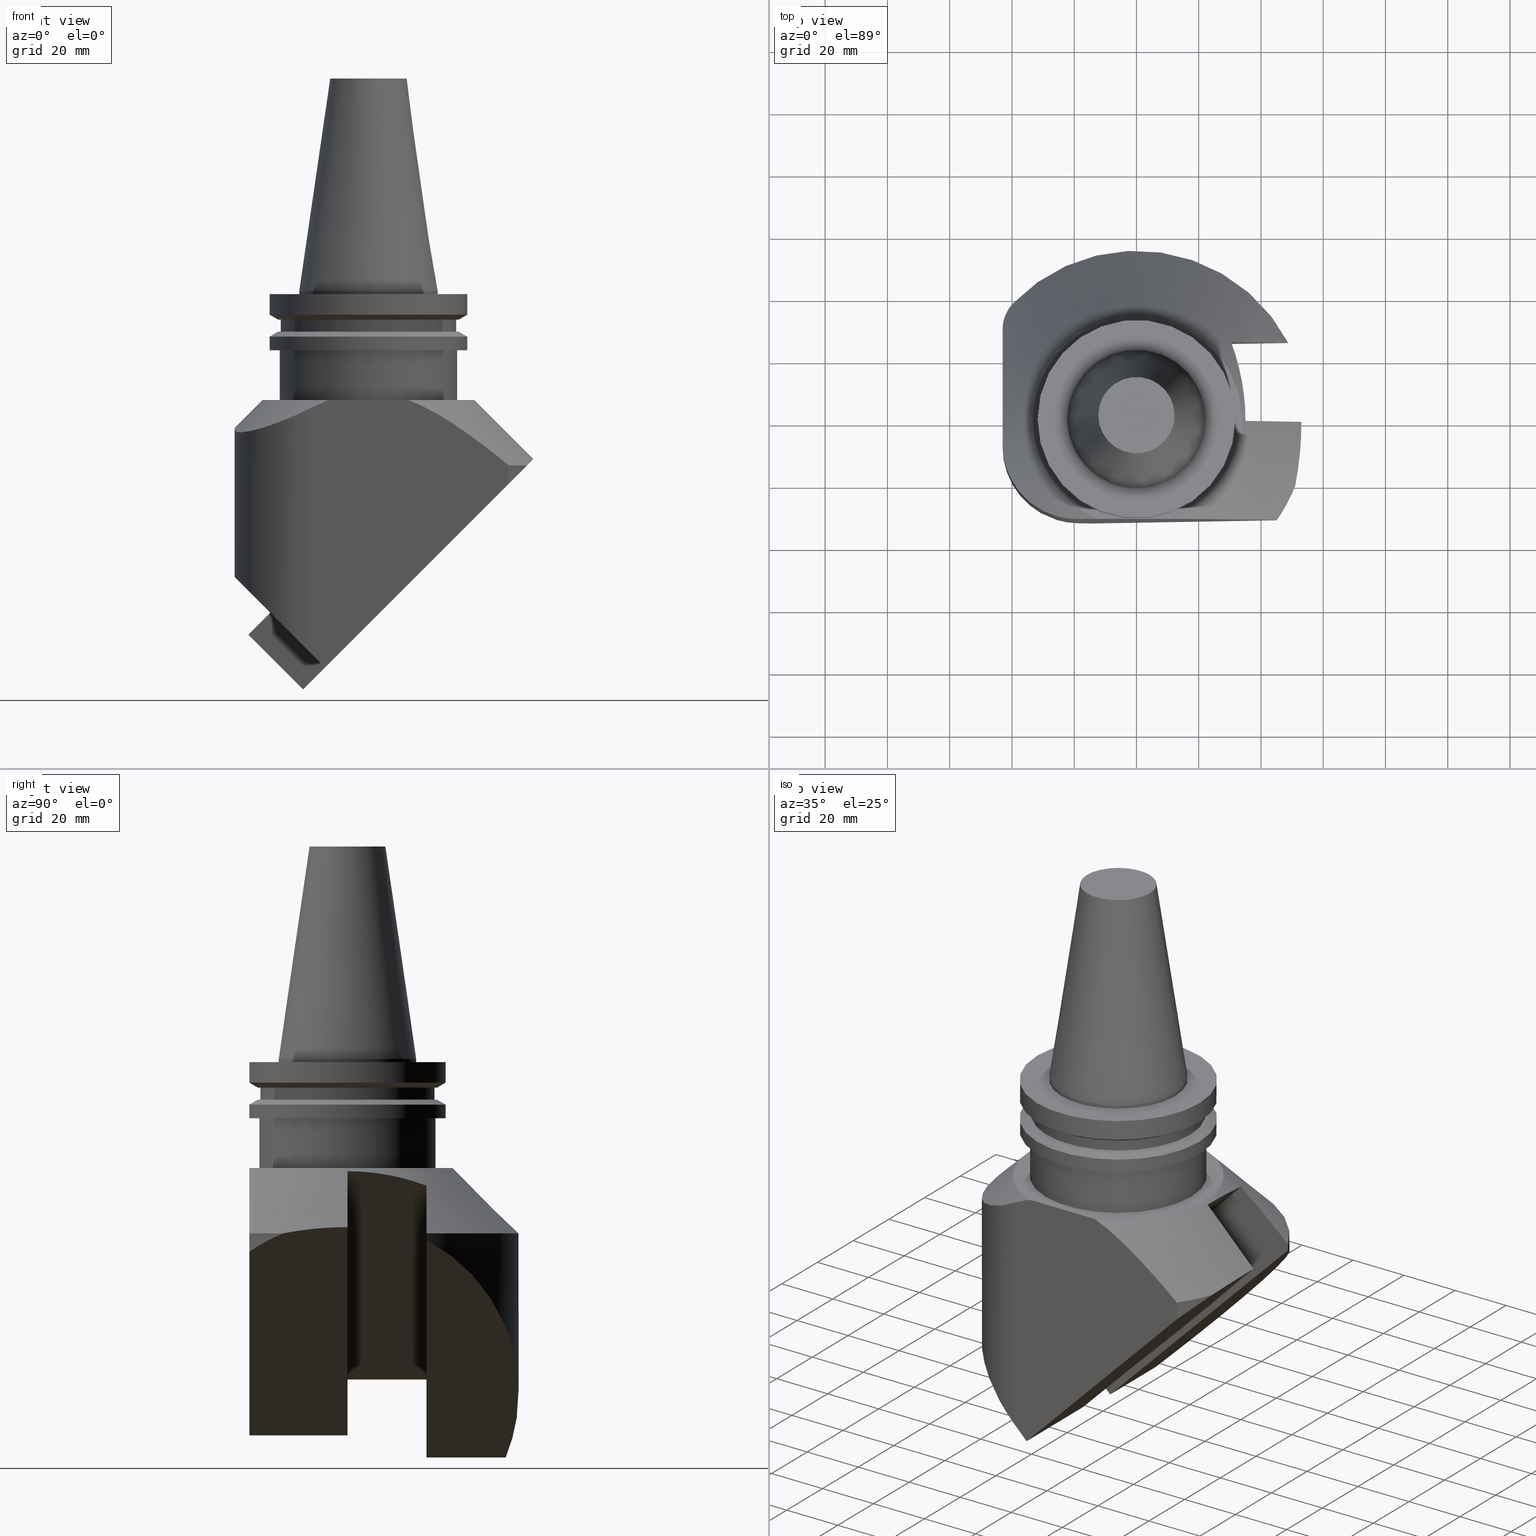
[diagram: canonical four-view strip — front | top / right | iso, engineering-drawing reading convention]
A machine part, canonical four-view strip (front | top / right | iso — engineering-drawing reading convention). The complete STEP part file that produces these views, byte-faithful:
ISO-10303-21;
HEADER;
FILE_DESCRIPTION((''),'1');
FILE_NAME('V:/01_Dxf_Field-HP\X2\FF71FF6FFF8CFF9F5916\X0\2013/BIGKAISER\X2\FF76FF80FF9BFF78FF9E63B28F095206\X0\_BKUS_201803/BCV40Y-45-BH/BCV40Y-45-BH1.000R-4.75.stp','2018-03-14T01:02:41',(''),(''),'Spatial Interop R21 SP3','Kubotek KeyCreator 2011 V10.0.2 (22737)',' ');
FILE_SCHEMA(('automotive_design'));
ENDSEC;
DATA;
#1=MECHANICAL_DESIGN_GEOMETRIC_PRESENTATION_REPRESENTATION(' ',(#10,#11,#12,#13,#14,#15,#16,#17,#18,#19,#20,#21,#22,#23,#24,#25,#26,#27,#28,#29,#30,#31,#32,#33,#34,#35,#36,#37,#38,#39,#40,#41,#42,#43,#44,#45,#46,#47,#48,#49,#50,#51,#52,#53,#54,#55,#56,#57,#58,#59,#60,#61,#62,#63,#64,#65,#66,#67,#68,#69,#70,#71,#72,#73,#74,#75,#76,#77,#78,#79,#80,#81,#82,#83,#84,#85,#86,#87,#88,#89,#90,#91,#92,#93,#94),#6);
#2=PRODUCT_DEFINITION_CONTEXT('',#95,'design');
#3=APPLICATION_PROTOCOL_DEFINITION('INTERNATIONAL STANDARD','automotive_design',1994,#95);
#4=PRODUCT_CATEGORY_RELATIONSHIP('NONE','NONE',#96,#97);
#5=SHAPE_DEFINITION_REPRESENTATION(#98,#99);
#6= (GEOMETRIC_REPRESENTATION_CONTEXT(3)GLOBAL_UNCERTAINTY_ASSIGNED_CONTEXT((#102))GLOBAL_UNIT_ASSIGNED_CONTEXT((#104,#105,#106))REPRESENTATION_CONTEXT('NONE','WORKSPACE'));
#10=STYLED_ITEM('',(#108,#109),#110);
#11=STYLED_ITEM('',(#111,#112),#113);
#12=STYLED_ITEM('',(#114),#115);
#13=STYLED_ITEM('',(#116),#117);
#14=STYLED_ITEM('',(#118),#119);
#15=STYLED_ITEM('',(#120),#121);
#16=STYLED_ITEM('',(#122),#123);
#17=STYLED_ITEM('',(#124,#125),#126);
#18=STYLED_ITEM('',(#127),#128);
#19=STYLED_ITEM('',(#129,#130),#131);
#20=STYLED_ITEM('',(#132),#133);
#21=STYLED_ITEM('',(#134),#135);
#22=STYLED_ITEM('',(#136),#137);
#23=STYLED_ITEM('',(#138),#139);
#24=STYLED_ITEM('',(#140,#141),#142);
#25=STYLED_ITEM('',(#143),#144);
#26=STYLED_ITEM('',(#145),#146);
#27=STYLED_ITEM('',(#147,#148),#149);
#28=STYLED_ITEM('',(#150),#151);
#29=STYLED_ITEM('',(#152),#153);
#30=STYLED_ITEM('',(#154),#155);
#31=STYLED_ITEM('',(#156,#157),#158);
#32=STYLED_ITEM('',(#159),#160);
#33=STYLED_ITEM('',(#161),#162);
#34=STYLED_ITEM('',(#163),#164);
#35=STYLED_ITEM('',(#165),#166);
#36=STYLED_ITEM('',(#167),#168);
#37=STYLED_ITEM('',(#169),#170);
#38=STYLED_ITEM('',(#171,#172),#173);
#39=STYLED_ITEM('',(#174,#175),#176);
#40=STYLED_ITEM('',(#177),#178);
#41=STYLED_ITEM('',(#179),#180);
#42=STYLED_ITEM('',(#181),#182);
#43=STYLED_ITEM('',(#183),#184);
#44=STYLED_ITEM('',(#185),#186);
#45=STYLED_ITEM('',(#187,#188),#189);
#46=STYLED_ITEM('',(#190),#191);
#47=STYLED_ITEM('',(#192,#193),#194);
#48=STYLED_ITEM('',(#195,#196),#197);
#49=STYLED_ITEM('',(#198),#199);
#50=STYLED_ITEM('',(#200),#201);
#51=STYLED_ITEM('',(#202),#203);
#52=STYLED_ITEM('',(#204,#205),#206);
#53=STYLED_ITEM('',(#207,#208),#209);
#54=STYLED_ITEM('',(#210,#211),#212);
#55=STYLED_ITEM('',(#213,#214),#215);
#56=STYLED_ITEM('',(#216,#217),#218);
#57=STYLED_ITEM('',(#219),#220);
#58=STYLED_ITEM('',(#221),#222);
#59=STYLED_ITEM('',(#223,#224),#225);
#60=STYLED_ITEM('',(#226),#227);
#61=STYLED_ITEM('',(#228),#229);
#62=STYLED_ITEM('',(#230),#231);
#63=STYLED_ITEM('',(#232),#233);
#64=STYLED_ITEM('',(#234,#235),#236);
#65=STYLED_ITEM('',(#237),#238);
#66=STYLED_ITEM('',(#239),#240);
#67=STYLED_ITEM('',(#241,#242),#243);
#68=STYLED_ITEM('',(#244,#245),#246);
#69=STYLED_ITEM('',(#247),#248);
#70=STYLED_ITEM('',(#249,#250),#251);
#71=STYLED_ITEM('',(#252),#253);
#72=STYLED_ITEM('',(#254),#255);
#73=STYLED_ITEM('',(#256,#257),#258);
#74=STYLED_ITEM('',(#259),#260);
#75=STYLED_ITEM('',(#261,#262),#263);
#76=STYLED_ITEM('',(#264),#265);
#77=STYLED_ITEM('',(#266),#267);
#78=STYLED_ITEM('',(#268),#269);
#79=STYLED_ITEM('',(#270),#271);
#80=STYLED_ITEM('',(#272,#273),#274);
#81=STYLED_ITEM('',(#275),#276);
#82=STYLED_ITEM('',(#277),#278);
#83=STYLED_ITEM('',(#279),#280);
#84=STYLED_ITEM('',(#281,#282),#283);
#85=STYLED_ITEM('',(#284),#285);
#86=STYLED_ITEM('',(#286),#287);
#87=STYLED_ITEM('',(#288,#289),#290);
#88=STYLED_ITEM('',(#291,#292),#293);
#89=STYLED_ITEM('',(#294),#295);
#90=STYLED_ITEM('',(#296),#297);
#91=STYLED_ITEM('',(#298),#299);
#92=STYLED_ITEM('',(#300,#301),#302);
#93=STYLED_ITEM('',(#303,#304),#305);
#94=STYLED_ITEM('',(#306),#307);
#95=APPLICATION_CONTEXT(' ');
#96=PRODUCT_CATEGORY('part','NONE');
#97=PRODUCT_RELATED_PRODUCT_CATEGORY('detail',' ',(#308));
#98=PRODUCT_DEFINITION_SHAPE('NONE','NONE',#309);
#99=ADVANCED_BREP_SHAPE_REPRESENTATION('Unnamed[1]',(#194,#310),#6);
#102=UNCERTAINTY_MEASURE_WITH_UNIT(LENGTH_MEASURE(1.0E-006),#104,'','');
#104= (CONVERSION_BASED_UNIT('MILLIMETRE',#313)LENGTH_UNIT()NAMED_UNIT(#316));
#105= (NAMED_UNIT(#318)PLANE_ANGLE_UNIT()SI_UNIT($,.RADIAN.));
#106= (NAMED_UNIT(#318)SOLID_ANGLE_UNIT()SI_UNIT($,.STERADIAN.));
#108=PRESENTATION_STYLE_ASSIGNMENT((#324));
#109=PRESENTATION_STYLE_ASSIGNMENT((#325));
#110=ADVANCED_FACE('Unnamed[1]',(#326),#327,.F.);
#111=PRESENTATION_STYLE_ASSIGNMENT((#328));
#112=PRESENTATION_STYLE_ASSIGNMENT((#329));
#113=ADVANCED_FACE('Unnamed[1]',(#330,#331),#332,.T.);
#114=PRESENTATION_STYLE_ASSIGNMENT((#333));
#115=EDGE_CURVE('Unnamed[1]',#334,#334,#335,.T.);
#116=PRESENTATION_STYLE_ASSIGNMENT((#336));
#117=EDGE_CURVE('Unnamed[1]',#337,#338,#339,.T.);
#118=PRESENTATION_STYLE_ASSIGNMENT((#340));
#119=EDGE_CURVE('Unnamed[1]',#341,#337,#342,.T.);
#120=PRESENTATION_STYLE_ASSIGNMENT((#343));
#121=EDGE_CURVE('Unnamed[1]',#344,#345,#346,.T.);
#122=PRESENTATION_STYLE_ASSIGNMENT((#347));
#123=EDGE_CURVE('Unnamed[1]',#348,#349,#350,.T.);
#124=PRESENTATION_STYLE_ASSIGNMENT((#351));
#125=PRESENTATION_STYLE_ASSIGNMENT((#352));
#126=ADVANCED_FACE('Unnamed[1]',(#353,#354),#355,.T.);
#127=PRESENTATION_STYLE_ASSIGNMENT((#356));
#128=EDGE_CURVE('Unnamed[1]',#357,#358,#359,.T.);
#129=PRESENTATION_STYLE_ASSIGNMENT((#360));
#130=PRESENTATION_STYLE_ASSIGNMENT((#361));
#131=ADVANCED_FACE('Unnamed[1]',(#362),#363,.T.);
#132=PRESENTATION_STYLE_ASSIGNMENT((#364));
#133=EDGE_CURVE('Unnamed[1]',#365,#366,#367,.T.);
#134=PRESENTATION_STYLE_ASSIGNMENT((#368));
#135=EDGE_CURVE('Unnamed[1]',#338,#369,#370,.T.);
#136=PRESENTATION_STYLE_ASSIGNMENT((#371));
#137=EDGE_CURVE('Unnamed[1]',#372,#373,#374,.T.);
#138=PRESENTATION_STYLE_ASSIGNMENT((#375));
#139=EDGE_CURVE('Unnamed[1]',#376,#348,#377,.T.);
#140=PRESENTATION_STYLE_ASSIGNMENT((#378));
#141=PRESENTATION_STYLE_ASSIGNMENT((#379));
#142=ADVANCED_FACE('Unnamed[1]',(#380),#381,.F.);
#143=PRESENTATION_STYLE_ASSIGNMENT((#382));
#144=EDGE_CURVE('Unnamed[1]',#383,#384,#385,.T.);
#145=PRESENTATION_STYLE_ASSIGNMENT((#386));
#146=EDGE_CURVE('Unnamed[1]',#387,#388,#389,.T.);
#147=PRESENTATION_STYLE_ASSIGNMENT((#390));
#148=PRESENTATION_STYLE_ASSIGNMENT((#391));
#149=ADVANCED_FACE('Unnamed[1]',(#392),#393,.F.);
#150=PRESENTATION_STYLE_ASSIGNMENT((#394));
#151=EDGE_CURVE('Unnamed[1]',#349,#387,#395,.T.);
#152=PRESENTATION_STYLE_ASSIGNMENT((#396));
#153=EDGE_CURVE('Unnamed[1]',#397,#397,#398,.T.);
#154=PRESENTATION_STYLE_ASSIGNMENT((#399));
#155=EDGE_CURVE('Unnamed[1]',#357,#383,#400,.T.);
#156=PRESENTATION_STYLE_ASSIGNMENT((#401));
#157=PRESENTATION_STYLE_ASSIGNMENT((#402));
#158=ADVANCED_FACE('Unnamed[1]',(#403),#404,.T.);
#159=PRESENTATION_STYLE_ASSIGNMENT((#405));
#160=EDGE_CURVE('Unnamed[1]',#406,#383,#407,.T.);
#161=PRESENTATION_STYLE_ASSIGNMENT((#408));
#162=EDGE_CURVE('Unnamed[1]',#409,#409,#410,.T.);
#163=PRESENTATION_STYLE_ASSIGNMENT((#411));
#164=EDGE_CURVE('Unnamed[1]',#412,#412,#413,.T.);
#165=PRESENTATION_STYLE_ASSIGNMENT((#414));
#166=EDGE_CURVE('Unnamed[1]',#387,#388,#415,.T.);
#167=PRESENTATION_STYLE_ASSIGNMENT((#416));
#168=EDGE_CURVE('Unnamed[1]',#417,#418,#419,.T.);
#169=PRESENTATION_STYLE_ASSIGNMENT((#420));
#170=EDGE_CURVE('Unnamed[1]',#421,#421,#422,.T.);
#171=PRESENTATION_STYLE_ASSIGNMENT((#423));
#172=PRESENTATION_STYLE_ASSIGNMENT((#424));
#173=ADVANCED_FACE('Unnamed[1]',(#425),#426,.T.);
#174=PRESENTATION_STYLE_ASSIGNMENT((#427));
#175=PRESENTATION_STYLE_ASSIGNMENT((#428));
#176=ADVANCED_FACE('Unnamed[1]',(#429),#430,.F.);
#177=PRESENTATION_STYLE_ASSIGNMENT((#431));
#178=EDGE_CURVE('Unnamed[1]',#369,#366,#432,.T.);
#179=PRESENTATION_STYLE_ASSIGNMENT((#433));
#180=EDGE_CURVE('Unnamed[1]',#434,#369,#435,.T.);
#181=PRESENTATION_STYLE_ASSIGNMENT((#436));
#182=EDGE_CURVE('Unnamed[1]',#437,#349,#438,.T.);
#183=PRESENTATION_STYLE_ASSIGNMENT((#439));
#184=EDGE_CURVE('Unnamed[1]',#338,#440,#441,.T.);
#185=PRESENTATION_STYLE_ASSIGNMENT((#442));
#186=EDGE_CURVE('Unnamed[1]',#443,#443,#444,.T.);
#187=PRESENTATION_STYLE_ASSIGNMENT((#445));
#188=PRESENTATION_STYLE_ASSIGNMENT((#446));
#189=ADVANCED_FACE('Unnamed[1]',(#447),#448,.T.);
#190=PRESENTATION_STYLE_ASSIGNMENT((#449));
#191=EDGE_CURVE('Unnamed[1]',#450,#450,#451,.T.);
#192=PRESENTATION_STYLE_ASSIGNMENT((#452));
#193=PRESENTATION_STYLE_ASSIGNMENT((#453));
#194=MANIFOLD_SOLID_BREP('Unnamed[1]',#454);
#195=PRESENTATION_STYLE_ASSIGNMENT((#455));
#196=PRESENTATION_STYLE_ASSIGNMENT((#456));
#197=ADVANCED_FACE('Unnamed[1]',(#457),#458,.F.);
#198=PRESENTATION_STYLE_ASSIGNMENT((#459));
#199=EDGE_CURVE('Unnamed[1]',#440,#345,#460,.T.);
#200=PRESENTATION_STYLE_ASSIGNMENT((#461));
#201=EDGE_CURVE('Unnamed[1]',#365,#373,#462,.T.);
#202=PRESENTATION_STYLE_ASSIGNMENT((#463));
#203=EDGE_CURVE('Unnamed[1]',#464,#465,#466,.T.);
#204=PRESENTATION_STYLE_ASSIGNMENT((#467));
#205=PRESENTATION_STYLE_ASSIGNMENT((#468));
#206=ADVANCED_FACE('Unnamed[1]',(#469),#470,.F.);
#207=PRESENTATION_STYLE_ASSIGNMENT((#471));
#208=PRESENTATION_STYLE_ASSIGNMENT((#472));
#209=ADVANCED_FACE('Unnamed[1]',(#473),#474,.T.);
#210=PRESENTATION_STYLE_ASSIGNMENT((#475));
#211=PRESENTATION_STYLE_ASSIGNMENT((#476));
#212=ADVANCED_FACE('Unnamed[1]',(#477,#478),#479,.T.);
#213=PRESENTATION_STYLE_ASSIGNMENT((#480));
#214=PRESENTATION_STYLE_ASSIGNMENT((#481));
#215=ADVANCED_FACE('Unnamed[1]',(#482,#483),#484,.T.);
#216=PRESENTATION_STYLE_ASSIGNMENT((#485));
#217=PRESENTATION_STYLE_ASSIGNMENT((#486));
#218=ADVANCED_FACE('Unnamed[1]',(#487,#488),#489,.T.);
#219=PRESENTATION_STYLE_ASSIGNMENT((#490));
#220=EDGE_CURVE('Unnamed[1]',#434,#440,#491,.T.);
#221=PRESENTATION_STYLE_ASSIGNMENT((#492));
#222=EDGE_CURVE('Unnamed[1]',#493,#344,#494,.T.);
#223=PRESENTATION_STYLE_ASSIGNMENT((#495));
#224=PRESENTATION_STYLE_ASSIGNMENT((#496));
#225=ADVANCED_FACE('Unnamed[1]',(#497),#498,.F.);
#226=PRESENTATION_STYLE_ASSIGNMENT((#499));
#227=EDGE_CURVE('Unnamed[1]',#465,#437,#500,.T.);
#228=PRESENTATION_STYLE_ASSIGNMENT((#501));
#229=EDGE_CURVE('Unnamed[1]',#384,#417,#502,.T.);
#230=PRESENTATION_STYLE_ASSIGNMENT((#503));
#231=EDGE_CURVE('Unnamed[1]',#388,#372,#504,.T.);
#232=PRESENTATION_STYLE_ASSIGNMENT((#505));
#233=EDGE_CURVE('Unnamed[1]',#417,#493,#506,.T.);
#234=PRESENTATION_STYLE_ASSIGNMENT((#507));
#235=PRESENTATION_STYLE_ASSIGNMENT((#508));
#236=ADVANCED_FACE('Unnamed[1]',(#509),#510,.F.);
#237=PRESENTATION_STYLE_ASSIGNMENT((#511));
#238=EDGE_CURVE('Unnamed[1]',#341,#372,#512,.T.);
#239=PRESENTATION_STYLE_ASSIGNMENT((#513));
#240=EDGE_CURVE('Unnamed[1]',#465,#348,#514,.T.);
#241=PRESENTATION_STYLE_ASSIGNMENT((#515));
#242=PRESENTATION_STYLE_ASSIGNMENT((#516));
#243=ADVANCED_FACE('Unnamed[1]',(#517,#518),#519,.T.);
#244=PRESENTATION_STYLE_ASSIGNMENT((#520));
#245=PRESENTATION_STYLE_ASSIGNMENT((#521));
#246=ADVANCED_FACE('Unnamed[1]',(#522,#523),#524,.T.);
#247=PRESENTATION_STYLE_ASSIGNMENT((#525));
#248=EDGE_CURVE('Unnamed[1]',#406,#357,#526,.T.);
#249=PRESENTATION_STYLE_ASSIGNMENT((#527));
#250=PRESENTATION_STYLE_ASSIGNMENT((#528));
#251=ADVANCED_FACE('Unnamed[1]',(#529,#530),#531,.T.);
#252=PRESENTATION_STYLE_ASSIGNMENT((#532));
#253=EDGE_CURVE('Unnamed[1]',#345,#406,#533,.T.);
#254=PRESENTATION_STYLE_ASSIGNMENT((#534));
#255=EDGE_CURVE('Unnamed[1]',#373,#341,#535,.T.);
#256=PRESENTATION_STYLE_ASSIGNMENT((#536));
#257=PRESENTATION_STYLE_ASSIGNMENT((#537));
#258=ADVANCED_FACE('Unnamed[1]',(#538,#539),#540,.T.);
#259=PRESENTATION_STYLE_ASSIGNMENT((#541));
#260=EDGE_CURVE('Unnamed[1]',#542,#542,#543,.T.);
#261=PRESENTATION_STYLE_ASSIGNMENT((#544));
#262=PRESENTATION_STYLE_ASSIGNMENT((#545));
#263=ADVANCED_FACE('Unnamed[1]',(#546,#547),#548,.T.);
#264=PRESENTATION_STYLE_ASSIGNMENT((#549));
#265=EDGE_CURVE('Unnamed[1]',#550,#550,#551,.T.);
#266=PRESENTATION_STYLE_ASSIGNMENT((#552));
#267=EDGE_CURVE('Unnamed[1]',#418,#434,#553,.T.);
#268=PRESENTATION_STYLE_ASSIGNMENT((#554));
#269=EDGE_CURVE('Unnamed[1]',#437,#365,#555,.T.);
#270=PRESENTATION_STYLE_ASSIGNMENT((#556));
#271=EDGE_CURVE('Unnamed[1]',#557,#557,#558,.T.);
#272=PRESENTATION_STYLE_ASSIGNMENT((#559));
#273=PRESENTATION_STYLE_ASSIGNMENT((#560));
#274=ADVANCED_FACE('Unnamed[1]',(#561,#562),#563,.T.);
#275=PRESENTATION_STYLE_ASSIGNMENT((#564));
#276=EDGE_CURVE('Unnamed[1]',#464,#376,#565,.T.);
#277=PRESENTATION_STYLE_ASSIGNMENT((#566));
#278=EDGE_CURVE('Unnamed[1]',#366,#337,#567,.T.);
#279=PRESENTATION_STYLE_ASSIGNMENT((#568));
#280=EDGE_CURVE('Unnamed[1]',#384,#358,#569,.T.);
#281=PRESENTATION_STYLE_ASSIGNMENT((#570));
#282=PRESENTATION_STYLE_ASSIGNMENT((#571));
#283=ADVANCED_FACE('Unnamed[1]',(#572),#573,.T.);
#284=PRESENTATION_STYLE_ASSIGNMENT((#574));
#285=EDGE_CURVE('Unnamed[1]',#358,#418,#575,.T.);
#286=PRESENTATION_STYLE_ASSIGNMENT((#576));
#287=EDGE_CURVE('Unnamed[1]',#577,#577,#578,.T.);
#288=PRESENTATION_STYLE_ASSIGNMENT((#579));
#289=PRESENTATION_STYLE_ASSIGNMENT((#580));
#290=ADVANCED_FACE('Unnamed[1]',(#581),#582,.F.);
#291=PRESENTATION_STYLE_ASSIGNMENT((#583));
#292=PRESENTATION_STYLE_ASSIGNMENT((#584));
#293=ADVANCED_FACE('Unnamed[1]',(#585,#586),#587,.T.);
#294=PRESENTATION_STYLE_ASSIGNMENT((#588));
#295=EDGE_CURVE('Unnamed[1]',#589,#589,#590,.T.);
#296=PRESENTATION_STYLE_ASSIGNMENT((#591));
#297=EDGE_CURVE('Unnamed[1]',#493,#464,#592,.T.);
#298=PRESENTATION_STYLE_ASSIGNMENT((#593));
#299=EDGE_CURVE('Unnamed[1]',#344,#376,#594,.T.);
#300=PRESENTATION_STYLE_ASSIGNMENT((#595));
#301=PRESENTATION_STYLE_ASSIGNMENT((#596));
#302=ADVANCED_FACE('Unnamed[1]',(#597),#598,.T.);
#303=PRESENTATION_STYLE_ASSIGNMENT((#599));
#304=PRESENTATION_STYLE_ASSIGNMENT((#600));
#305=ADVANCED_FACE('Unnamed[1]',(#601,#602),#603,.T.);
#306=PRESENTATION_STYLE_ASSIGNMENT((#604));
#307=EDGE_CURVE('Unnamed[1]',#605,#605,#606,.T.);
#308=PRODUCT('Unnamed[1]','Unnamed[1]','PART-Unnamed[1]-DESC',(#607));
#309=PRODUCT_DEFINITION('NONE','NONE',#608,#2);
#310=AXIS2_PLACEMENT_3D('',#609,#610,#611);
#313=LENGTH_MEASURE_WITH_UNIT(LENGTH_MEASURE(1.0),#612);
#316=DIMENSIONAL_EXPONENTS(1.0,0.0,0.0,0.0,0.0,0.0,0.0);
#318=DIMENSIONAL_EXPONENTS(0.0,0.0,0.0,0.0,0.0,0.0,0.0);
#324=SURFACE_STYLE_USAGE(.BOTH.,#613);
#325=CURVE_STYLE('',#614,POSITIVE_LENGTH_MEASURE(1000.0),#615);
#326=FACE_OUTER_BOUND('',#616,.T.);
#327=PLANE('',#617);
#328=SURFACE_STYLE_USAGE(.BOTH.,#618);
#329=CURVE_STYLE('',#619,POSITIVE_LENGTH_MEASURE(1000.0),#620);
#330=FACE_BOUND('',#621,.T.);
#331=FACE_BOUND('',#622,.T.);
#332=CYLINDRICAL_SURFACE('',#623,31.75);
#333=CURVE_STYLE('',#624,POSITIVE_LENGTH_MEASURE(1000.0),#625);
#334=VERTEX_POINT('',#626);
#335=CIRCLE('',#627,31.75);
#336=CURVE_STYLE('',#628,POSITIVE_LENGTH_MEASURE(1000.0),#629);
#337=VERTEX_POINT('',#630);
#338=VERTEX_POINT('',#631);
#339=LINE('',#632,#633);
#340=CURVE_STYLE('',#634,POSITIVE_LENGTH_MEASURE(1000.0),#635);
#341=VERTEX_POINT('',#636);
#342=B_SPLINE_CURVE_WITH_KNOTS('',2,(#637,#638,#639,#640,#641),.UNSPECIFIED.,.F.,.F.,(3,2,3),(0.0,20.832899807414,41.665799614828),.UNSPECIFIED.);
#343=CURVE_STYLE('',#642,POSITIVE_LENGTH_MEASURE(1000.0),#643);
#344=VERTEX_POINT('',#644);
#345=VERTEX_POINT('',#645);
#346=CIRCLE('',#646,55.0000000000001);
#347=CURVE_STYLE('',#647,POSITIVE_LENGTH_MEASURE(1000.0),#648);
#348=VERTEX_POINT('',#649);
#349=VERTEX_POINT('',#650);
#350=B_SPLINE_CURVE_WITH_KNOTS('',3,(#651,#652,#653,#654,#655,#656,#657,#658,#659,#660,#661,#662,#663,#664,#665,#666,#667,#668,#669,#670,#671,#672,#673,#674,#675,#676),.UNSPECIFIED.,.F.,.F.,(4,2,2,2,2,2,2,2,2,2,2,2,4),(26.1210340867507,29.2629536053741,32.4048731239974,35.4695282493329,38.5341833746684,41.598838500004,44.6634936253395,47.8561395716159,51.0487855178923,54.2414314641686,57.434077410445,60.9718571634875,64.50963691653),.UNSPECIFIED.);
#351=SURFACE_STYLE_USAGE(.BOTH.,#677);
#352=CURVE_STYLE('',#678,POSITIVE_LENGTH_MEASURE(1000.0),#679);
#353=FACE_OUTER_BOUND('',#680,.T.);
#354=FACE_BOUND('',#681,.T.);
#355=PLANE('',#682);
#356=CURVE_STYLE('',#683,POSITIVE_LENGTH_MEASURE(1000.0),#684);
#357=VERTEX_POINT('',#685);
#358=VERTEX_POINT('',#686);
#359=LINE('',#687,#688);
#360=SURFACE_STYLE_USAGE(.BOTH.,#689);
#361=CURVE_STYLE('',#690,POSITIVE_LENGTH_MEASURE(1000.0),#691);
#362=FACE_OUTER_BOUND('',#692,.T.);
#363=CONICAL_SURFACE('',#693,44.4999999999994,0.785398163397441);
#364=CURVE_STYLE('',#694,POSITIVE_LENGTH_MEASURE(1000.0),#695);
#365=VERTEX_POINT('',#696);
#366=VERTEX_POINT('',#697);
#367=LINE('',#698,#699);
#368=CURVE_STYLE('',#700,POSITIVE_LENGTH_MEASURE(1000.0),#701);
#369=VERTEX_POINT('',#702);
#370=LINE('',#703,#704);
#371=CURVE_STYLE('',#705,POSITIVE_LENGTH_MEASURE(1000.0),#706);
#372=VERTEX_POINT('',#707);
#373=VERTEX_POINT('',#708);
#374=LINE('',#709,#710);
#375=CURVE_STYLE('',#711,POSITIVE_LENGTH_MEASURE(1000.0),#712);
#376=VERTEX_POINT('',#713);
#377=(B_SPLINE_CURVE(2,(#715,#716,#717),.UNSPECIFIED.,.F.,.F.)B_SPLINE_CURVE_WITH_KNOTS((3,3),(0.0,72.6636084983826),.UNSPECIFIED.)RATIONAL_B_SPLINE_CURVE((1.0,1.27906976744214,1.0))BOUNDED_CURVE()REPRESENTATION_ITEM('')GEOMETRIC_REPRESENTATION_ITEM()CURVE());
#378=SURFACE_STYLE_USAGE(.BOTH.,#724);
#379=CURVE_STYLE('',#725,POSITIVE_LENGTH_MEASURE(1000.0),#726);
#380=FACE_OUTER_BOUND('',#727,.T.);
#381=PLANE('',#728);
#382=CURVE_STYLE('',#729,POSITIVE_LENGTH_MEASURE(1000.0),#730);
#383=VERTEX_POINT('',#731);
#384=VERTEX_POINT('',#732);
#385=ELLIPSE('',#733,77.781745860767,55.0);
#386=CURVE_STYLE('',#734,POSITIVE_LENGTH_MEASURE(1000.0),#735);
#387=VERTEX_POINT('',#736);
#388=VERTEX_POINT('',#737);
#389=LINE('',#738,#739);
#390=SURFACE_STYLE_USAGE(.BOTH.,#740);
#391=CURVE_STYLE('',#741,POSITIVE_LENGTH_MEASURE(1000.0),#742);
#392=FACE_OUTER_BOUND('',#743,.T.);
#393=PLANE('',#744);
#394=CURVE_STYLE('',#745,POSITIVE_LENGTH_MEASURE(1000.0),#746);
#395=(B_SPLINE_CURVE(2,(#748,#749,#750),.UNSPECIFIED.,.F.,.F.)B_SPLINE_CURVE_WITH_KNOTS((3,3),(0.0,38.6326090331156),.UNSPECIFIED.)RATIONAL_B_SPLINE_CURVE((1.0,1.07311621530074,1.0))BOUNDED_CURVE()REPRESENTATION_ITEM('')GEOMETRIC_REPRESENTATION_ITEM()CURVE());
#396=CURVE_STYLE('',#757,POSITIVE_LENGTH_MEASURE(1000.0),#758);
#397=VERTEX_POINT('',#759);
#398=CIRCLE('',#760,12.2718750014769);
#399=CURVE_STYLE('',#761,POSITIVE_LENGTH_MEASURE(1000.0),#762);
#400=LINE('',#763,#764);
#401=SURFACE_STYLE_USAGE(.BOTH.,#765);
#402=CURVE_STYLE('',#766,POSITIVE_LENGTH_MEASURE(1000.0),#767);
#403=FACE_OUTER_BOUND('',#768,.T.);
#404=CYLINDRICAL_SURFACE('',#769,24.0);
#405=CURVE_STYLE('',#770,POSITIVE_LENGTH_MEASURE(1000.0),#771);
#406=VERTEX_POINT('',#772);
#407=ELLIPSE('',#773,77.7817459305204,55.0);
#408=CURVE_STYLE('',#774,POSITIVE_LENGTH_MEASURE(1000.0),#775);
#409=VERTEX_POINT('',#776);
#410=CIRCLE('',#777,28.95591319);
#411=CURVE_STYLE('',#778,POSITIVE_LENGTH_MEASURE(1000.0),#779);
#412=VERTEX_POINT('',#780);
#413=CIRCLE('',#781,28.5000000000002);
#414=CURVE_STYLE('',#782,POSITIVE_LENGTH_MEASURE(1000.0),#783);
#415=CIRCLE('',#784,33.9999999999988);
#416=CURVE_STYLE('',#785,POSITIVE_LENGTH_MEASURE(1000.0),#786);
#417=VERTEX_POINT('',#787);
#418=VERTEX_POINT('',#788);
#419=LINE('',#789,#790);
#420=CURVE_STYLE('',#791,POSITIVE_LENGTH_MEASURE(1000.0),#792);
#421=VERTEX_POINT('',#793);
#422=CIRCLE('',#794,31.75);
#423=SURFACE_STYLE_USAGE(.BOTH.,#795);
#424=CURVE_STYLE('',#796,POSITIVE_LENGTH_MEASURE(1000.0),#797);
#425=FACE_OUTER_BOUND('',#798,.T.);
#426=PLANE('',#799);
#427=SURFACE_STYLE_USAGE(.BOTH.,#800);
#428=CURVE_STYLE('',#801,POSITIVE_LENGTH_MEASURE(1000.0),#802);
#429=FACE_OUTER_BOUND('',#803,.T.);
#430=PLANE('',#804);
#431=CURVE_STYLE('',#805,POSITIVE_LENGTH_MEASURE(1000.0),#806);
#432=LINE('',#807,#808);
#433=CURVE_STYLE('',#809,POSITIVE_LENGTH_MEASURE(1000.0),#810);
#434=VERTEX_POINT('',#811);
#435=LINE('',#812,#813);
#436=CURVE_STYLE('',#814,POSITIVE_LENGTH_MEASURE(1000.0),#815);
#437=VERTEX_POINT('',#816);
#438=LINE('',#817,#818);
#439=CURVE_STYLE('',#819,POSITIVE_LENGTH_MEASURE(1000.0),#820);
#440=VERTEX_POINT('',#821);
#441=B_SPLINE_CURVE_WITH_KNOTS('',2,(#822,#823,#824),.UNSPECIFIED.,.F.,.F.,(3,3),(0.0,119.908544665201),.UNSPECIFIED.);
#442=CURVE_STYLE('',#825,POSITIVE_LENGTH_MEASURE(1000.0),#826);
#443=VERTEX_POINT('',#827);
#444=CIRCLE('',#828,28.18);
#445=SURFACE_STYLE_USAGE(.BOTH.,#829);
#446=CURVE_STYLE('',#830,POSITIVE_LENGTH_MEASURE(1000.0),#831);
#447=FACE_OUTER_BOUND('',#832,.T.);
#448=CYLINDRICAL_SURFACE('',#833,12.0);
#449=CURVE_STYLE('',#834,POSITIVE_LENGTH_MEASURE(1000.0),#835);
#450=VERTEX_POINT('',#836);
#451=CIRCLE('',#837,31.75);
#452=SURFACE_STYLE_USAGE(.BOTH.,#838);
#453=CURVE_STYLE('',#839,POSITIVE_LENGTH_MEASURE(1000.0),#840);
#454=CLOSED_SHELL('',(#173,#176,#149,#209,#142,#225,#290,#197,#110,#131,#189,#206,#158,#236,#283,#302,#263,#293,#126,#243,#212,#251,#246,#218,#258,#113,#215,#274,#305));
#455=SURFACE_STYLE_USAGE(.BOTH.,#841);
#456=CURVE_STYLE('',#842,POSITIVE_LENGTH_MEASURE(1000.0),#843);
#457=FACE_OUTER_BOUND('',#844,.T.);
#458=PLANE('',#845);
#459=CURVE_STYLE('',#846,POSITIVE_LENGTH_MEASURE(1000.0),#847);
#460=(B_SPLINE_CURVE(2,(#849,#850,#851),.UNSPECIFIED.,.F.,.F.)B_SPLINE_CURVE_WITH_KNOTS((3,3),(0.0,33.5817904275309),.UNSPECIFIED.)RATIONAL_B_SPLINE_CURVE((1.0,1.0462986387854,1.0))BOUNDED_CURVE()REPRESENTATION_ITEM('')GEOMETRIC_REPRESENTATION_ITEM()CURVE());
#461=CURVE_STYLE('',#858,POSITIVE_LENGTH_MEASURE(1000.0),#859);
#462=LINE('',#860,#861);
#463=CURVE_STYLE('',#862,POSITIVE_LENGTH_MEASURE(1000.0),#863);
#464=VERTEX_POINT('',#864);
#465=VERTEX_POINT('',#865);
#466=LINE('',#866,#867);
#467=SURFACE_STYLE_USAGE(.BOTH.,#868);
#468=CURVE_STYLE('',#869,POSITIVE_LENGTH_MEASURE(1000.0),#870);
#469=FACE_OUTER_BOUND('',#871,.T.);
#470=PLANE('',#872);
#471=SURFACE_STYLE_USAGE(.BOTH.,#873);
#472=CURVE_STYLE('',#874,POSITIVE_LENGTH_MEASURE(1000.0),#875);
#473=FACE_OUTER_BOUND('',#876,.T.);
#474=CYLINDRICAL_SURFACE('',#877,55.0);
#475=SURFACE_STYLE_USAGE(.BOTH.,#878);
#476=CURVE_STYLE('',#879,POSITIVE_LENGTH_MEASURE(1000.0),#880);
#477=FACE_BOUND('',#881,.T.);
#478=FACE_BOUND('',#882,.T.);
#479=CONICAL_SURFACE('',#883,30.365080955,1.04719755034994);
#480=SURFACE_STYLE_USAGE(.BOTH.,#884);
#481=CURVE_STYLE('',#885,POSITIVE_LENGTH_MEASURE(1000.0),#886);
#482=FACE_BOUND('',#887,.T.);
#483=FACE_OUTER_BOUND('',#888,.T.);
#484=PLANE('',#889);
#485=SURFACE_STYLE_USAGE(.BOTH.,#890);
#486=CURVE_STYLE('',#891,POSITIVE_LENGTH_MEASURE(1000.0),#892);
#487=FACE_OUTER_BOUND('',#893,.T.);
#488=FACE_BOUND('',#894,.T.);
#489=PLANE('',#895);
#490=CURVE_STYLE('',#896,POSITIVE_LENGTH_MEASURE(1000.0),#897);
#491=LINE('',#898,#899);
#492=CURVE_STYLE('',#900,POSITIVE_LENGTH_MEASURE(1000.0),#901);
#493=VERTEX_POINT('',#902);
#494=LINE('',#903,#904);
#495=SURFACE_STYLE_USAGE(.BOTH.,#905);
#496=CURVE_STYLE('',#906,POSITIVE_LENGTH_MEASURE(1000.0),#907);
#497=FACE_OUTER_BOUND('',#908,.T.);
#498=PLANE('',#909);
#499=CURVE_STYLE('',#910,POSITIVE_LENGTH_MEASURE(1000.0),#911);
#500=ELLIPSE('',#912,33.9411254969546,24.0);
#501=CURVE_STYLE('',#913,POSITIVE_LENGTH_MEASURE(1000.0),#914);
#502=ELLIPSE('',#915,77.7817459305204,55.0);
#503=CURVE_STYLE('',#916,POSITIVE_LENGTH_MEASURE(1000.0),#917);
#504=(B_SPLINE_CURVE(2,(#919,#920,#921),.UNSPECIFIED.,.F.,.F.)B_SPLINE_CURVE_WITH_KNOTS((3,3),(0.0,38.6326090331156),.UNSPECIFIED.)RATIONAL_B_SPLINE_CURVE((1.0,1.07311621530072,1.0))BOUNDED_CURVE()REPRESENTATION_ITEM('')GEOMETRIC_REPRESENTATION_ITEM()CURVE());
#505=CURVE_STYLE('',#928,POSITIVE_LENGTH_MEASURE(1000.0),#929);
#506=ELLIPSE('',#930,77.7817459305214,55.0);
#507=SURFACE_STYLE_USAGE(.BOTH.,#931);
#508=CURVE_STYLE('',#932,POSITIVE_LENGTH_MEASURE(1000.0),#933);
#509=FACE_OUTER_BOUND('',#934,.T.);
#510=PLANE('',#935);
#511=CURVE_STYLE('',#936,POSITIVE_LENGTH_MEASURE(1000.0),#937);
#512=CIRCLE('',#938,55.0000000000001);
#513=CURVE_STYLE('',#939,POSITIVE_LENGTH_MEASURE(1000.0),#940);
#514=LINE('',#941,#942);
#515=SURFACE_STYLE_USAGE(.BOTH.,#943);
#516=CURVE_STYLE('',#944,POSITIVE_LENGTH_MEASURE(1000.0),#945);
#517=FACE_BOUND('',#946,.T.);
#518=FACE_BOUND('',#947,.T.);
#519=CYLINDRICAL_SURFACE('',#948,31.75);
#520=SURFACE_STYLE_USAGE(.BOTH.,#949);
#521=CURVE_STYLE('',#950,POSITIVE_LENGTH_MEASURE(1000.0),#951);
#522=FACE_BOUND('',#952,.T.);
#523=FACE_BOUND('',#953,.T.);
#524=CYLINDRICAL_SURFACE('',#954,28.18);
#525=CURVE_STYLE('',#955,POSITIVE_LENGTH_MEASURE(1000.0),#956);
#526=LINE('',#957,#958);
#527=SURFACE_STYLE_USAGE(.BOTH.,#959);
#528=CURVE_STYLE('',#960,POSITIVE_LENGTH_MEASURE(1000.0),#961);
#529=FACE_BOUND('',#962,.T.);
#530=FACE_OUTER_BOUND('',#963,.T.);
#531=PLANE('',#964);
#532=CURVE_STYLE('',#965,POSITIVE_LENGTH_MEASURE(1000.0),#966);
#533=LINE('',#967,#968);
#534=CURVE_STYLE('',#969,POSITIVE_LENGTH_MEASURE(1000.0),#970);
#535=ELLIPSE('',#971,77.7817459305204,55.0);
#536=SURFACE_STYLE_USAGE(.BOTH.,#972);
#537=CURVE_STYLE('',#973,POSITIVE_LENGTH_MEASURE(1000.0),#974);
#538=FACE_BOUND('',#975,.T.);
#539=FACE_BOUND('',#976,.T.);
#540=CONICAL_SURFACE('',#977,30.352956595,1.04719755170464);
#541=CURVE_STYLE('',#978,POSITIVE_LENGTH_MEASURE(1000.0),#979);
#542=VERTEX_POINT('',#980);
#543=CIRCLE('',#981,22.225);
#544=SURFACE_STYLE_USAGE(.BOTH.,#982);
#545=CURVE_STYLE('',#983,POSITIVE_LENGTH_MEASURE(1000.0),#984);
#546=FACE_BOUND('',#985,.T.);
#547=FACE_BOUND('',#986,.T.);
#548=CONICAL_SURFACE('',#987,17.2484375007384,0.14481249821775);
#549=CURVE_STYLE('',#988,POSITIVE_LENGTH_MEASURE(1000.0),#989);
#550=VERTEX_POINT('',#990);
#551=CIRCLE('',#991,28.18);
#552=CURVE_STYLE('',#992,POSITIVE_LENGTH_MEASURE(1000.0),#993);
#553=LINE('',#994,#995);
#554=CURVE_STYLE('',#996,POSITIVE_LENGTH_MEASURE(1000.0),#997);
#555=LINE('',#998,#999);
#556=CURVE_STYLE('',#1000,POSITIVE_LENGTH_MEASURE(1000.0),#1001);
#557=VERTEX_POINT('',#1002);
#558=CIRCLE('',#1003,28.4999999999997);
#559=SURFACE_STYLE_USAGE(.BOTH.,#1004);
#560=CURVE_STYLE('',#1005,POSITIVE_LENGTH_MEASURE(1000.0),#1006);
#561=FACE_BOUND('',#1007,.T.);
#562=FACE_BOUND('',#1008,.T.);
#563=CYLINDRICAL_SURFACE('',#1009,28.4999999999999);
#564=CURVE_STYLE('',#1010,POSITIVE_LENGTH_MEASURE(1000.0),#1011);
#565=LINE('',#1012,#1013);
#566=CURVE_STYLE('',#1014,POSITIVE_LENGTH_MEASURE(1000.0),#1015);
#567=LINE('',#1016,#1017);
#568=CURVE_STYLE('',#1018,POSITIVE_LENGTH_MEASURE(1000.0),#1019);
#569=LINE('',#1020,#1021);
#570=SURFACE_STYLE_USAGE(.BOTH.,#1022);
#571=CURVE_STYLE('',#1023,POSITIVE_LENGTH_MEASURE(1000.0),#1024);
#572=FACE_OUTER_BOUND('',#1025,.T.);
#573=CYLINDRICAL_SURFACE('',#1026,55.0);
#574=CURVE_STYLE('',#1027,POSITIVE_LENGTH_MEASURE(1000.0),#1028);
#575=LINE('',#1029,#1030);
#576=CURVE_STYLE('',#1031,POSITIVE_LENGTH_MEASURE(1000.0),#1032);
#577=VERTEX_POINT('',#1033);
#578=CIRCLE('',#1034,31.75);
#579=SURFACE_STYLE_USAGE(.BOTH.,#1035);
#580=CURVE_STYLE('',#1036,POSITIVE_LENGTH_MEASURE(1000.0),#1037);
#581=FACE_OUTER_BOUND('',#1038,.T.);
#582=PLANE('',#1039);
#583=SURFACE_STYLE_USAGE(.BOTH.,#1040);
#584=CURVE_STYLE('',#1041,POSITIVE_LENGTH_MEASURE(1000.0),#1042);
#585=FACE_BOUND('',#1043,.T.);
#586=FACE_BOUND('',#1044,.T.);
#587=CYLINDRICAL_SURFACE('',#1045,22.225);
#588=CURVE_STYLE('',#1046,POSITIVE_LENGTH_MEASURE(1000.0),#1047);
#589=VERTEX_POINT('',#1048);
#590=CIRCLE('',#1049,28.98016191);
#591=CURVE_STYLE('',#1050,POSITIVE_LENGTH_MEASURE(1000.0),#1051);
#592=ELLIPSE('',#1052,16.9705627484773,12.0);
#593=CURVE_STYLE('',#1053,POSITIVE_LENGTH_MEASURE(1000.0),#1054);
#594=B_SPLINE_CURVE_WITH_KNOTS('',3,(#1055,#1056,#1057,#1058,#1059,#1060,#1061,#1062,#1063,#1064,#1065,#1066,#1067,#1068,#1069,#1070,#1071,#1072),.UNSPECIFIED.,.F.,.F.,(4,2,2,2,2,2,2,2,4),(36.2557716590916,37.5446252428977,38.8334788267038,40.12233241051,41.4111859943161,42.7000395781222,44.2429399208327,45.7858402635432,47.3287406062536),.UNSPECIFIED.);
#595=SURFACE_STYLE_USAGE(.BOTH.,#1073);
#596=CURVE_STYLE('',#1074,POSITIVE_LENGTH_MEASURE(1000.0),#1075);
#597=FACE_OUTER_BOUND('',#1076,.T.);
#598=PLANE('',#1077);
#599=SURFACE_STYLE_USAGE(.BOTH.,#1078);
#600=CURVE_STYLE('',#1079,POSITIVE_LENGTH_MEASURE(1000.0),#1080);
#601=FACE_OUTER_BOUND('',#1081,.T.);
#602=FACE_BOUND('',#1082,.T.);
#603=PLANE('',#1083);
#604=CURVE_STYLE('',#1084,POSITIVE_LENGTH_MEASURE(1000.0),#1085);
#605=VERTEX_POINT('',#1086);
#606=CIRCLE('',#1087,22.225);
#607=PRODUCT_CONTEXT('',#95,'mechanical');
#608=PRODUCT_DEFINITION_FORMATION_WITH_SPECIFIED_SOURCE(' ','NONE',#308,.NOT_KNOWN.);
#609=CARTESIAN_POINT('',(0.0,0.0,0.0));
#610=DIRECTION('',(0.0,0.0,1.0));
#611=DIRECTION('',(1.0,0.0,0.0));
#612= (NAMED_UNIT(#316)LENGTH_UNIT()SI_UNIT(.MILLI.,.METRE.));
#613=SURFACE_SIDE_STYLE('',(#1089));
#614=DRAUGHTING_PRE_DEFINED_CURVE_FONT('continuous');
#615=COLOUR_RGB('',0.0,1.0,0.0);
#616=EDGE_LOOP('',(#1090,#1091,#1092,#1093));
#617=AXIS2_PLACEMENT_3D('',#1094,#1095,#1096);
#618=SURFACE_SIDE_STYLE('',(#1097));
#619=DRAUGHTING_PRE_DEFINED_CURVE_FONT('continuous');
#620=COLOUR_RGB('',0.0,1.0,0.0);
#621=EDGE_LOOP('',(#1098));
#622=EDGE_LOOP('',(#1099));
#623=AXIS2_PLACEMENT_3D('',#1100,#1101,#1102);
#624=DRAUGHTING_PRE_DEFINED_CURVE_FONT('continuous');
#625=COLOUR_RGB('',0.0,1.0,0.0);
#626=CARTESIAN_POINT('',(-31.7499999999997,5.77114804098184E-015,-1.00000000000013));
#627=AXIS2_PLACEMENT_3D('',#1103,#1104,#1105);
#628=DRAUGHTING_PRE_DEFINED_CURVE_FONT('continuous');
#629=COLOUR_RGB('',0.0,1.0,0.0);
#630=CARTESIAN_POINT('',(53.0000000000004,-3.85271485007796E-013,-53.9999999999996));
#631=CARTESIAN_POINT('',(35.0394877578622,2.94327983208917E-013,-36.0394877578613));
#632=CARTESIAN_POINT('',(44.4999999999999,2.92010826001792E-013,-45.499999999999));
#633=VECTOR('',#1106,1.0);
#634=DRAUGHTING_PRE_DEFINED_CURVE_FONT('continuous');
#635=COLOUR_RGB('',0.0,1.0,0.0);
#636=CARTESIAN_POINT('',(50.9999999999997,-20.5912602819761,-55.9999999999998));
#637=CARTESIAN_POINT('',(50.9997901113171,-20.592340721754,-56.0002098886824));
#638=CARTESIAN_POINT('',(53.0000000000005,-10.2961703608755,-53.999999999999));
#639=CARTESIAN_POINT('',(53.0000000000005,-1.30424884109193E-014,-53.999999999999));
#640=CARTESIAN_POINT('',(53.0000000000005,10.2961703608755,-53.999999999999));
#641=CARTESIAN_POINT('',(50.9997901113171,20.592340721754,-56.0002098886824));
#642=DRAUGHTING_PRE_DEFINED_CURVE_FONT('continuous');
#643=COLOUR_RGB('',0.0,1.0,0.0);
#644=CARTESIAN_POINT('',(-39.6511627906968,38.1154206240154,-56.0000000000001));
#645=CARTESIAN_POINT('',(48.7836038029177,25.4000000000002,-55.9999999999998));
#646=AXIS2_PLACEMENT_3D('',#1107,#1108,#1109);
#647=DRAUGHTING_PRE_DEFINED_CURVE_FONT('continuous');
#648=COLOUR_RGB('',0.0,1.0,0.0);
#649=CARTESIAN_POINT('',(-42.9999999999993,-7.49999999999967,-44.6491695224545));
#650=CARTESIAN_POINT('',(-18.9999999999995,-31.4999999999999,-37.7865464538325));
#651=CARTESIAN_POINT('',(-42.9694685823303,-6.28980337108126,-44.4273745084132));
#652=CARTESIAN_POINT('',(-43.0254126314851,-7.3978460744687,-44.6432120353778));
#653=CARTESIAN_POINT('',(-43.0037050726678,-8.51637629093491,-44.8253065560788));
#654=CARTESIAN_POINT('',(-42.8099886090219,-10.7086321721822,-45.1155313618004));
#655=CARTESIAN_POINT('',(-42.6379543051918,-11.7823544868815,-45.2236699984518));
#656=CARTESIAN_POINT('',(-42.182099669516,-13.7951313129174,-45.3689294630072));
#657=CARTESIAN_POINT('',(-41.88284656391,-14.8176308127668,-45.4135423577628));
#658=CARTESIAN_POINT('',(-41.1309507025361,-16.8484441797186,-45.4348163328809));
#659=CARTESIAN_POINT('',(-40.6782934786384,-17.8567526277081,-45.4114833647167));
#660=CARTESIAN_POINT('',(-39.6396859063184,-19.7969142007378,-45.2946406522136));
#661=CARTESIAN_POINT('',(-39.0532403375704,-20.7297240842489,-45.2010685500471));
#662=CARTESIAN_POINT('',(-37.78874428759,-22.4713438100465,-44.9523367632936));
#663=CARTESIAN_POINT('',(-37.1107309192384,-23.2801784665288,-44.7971621564313));
#664=CARTESIAN_POINT('',(-35.6972983792389,-24.7713398425834,-44.4378986273893));
#665=CARTESIAN_POINT('',(-34.89946280051,-25.5114998903284,-44.2165344542336));
#666=CARTESIAN_POINT('',(-33.1873765536986,-26.8887955319529,-43.6997541852656));
#667=CARTESIAN_POINT('',(-32.2731604417753,-27.5259659471109,-43.4043164105869));
#668=CARTESIAN_POINT('',(-30.3807717755459,-28.6587839759325,-42.7517371221532));
#669=CARTESIAN_POINT('',(-29.401824995131,-29.1549793750131,-42.3942824581296));
#670=CARTESIAN_POINT('',(-27.4411962114427,-29.9918274382606,-41.6390876792466));
#671=CARTESIAN_POINT('',(-26.4595620086914,-30.3325621458989,-41.241314382709));
#672=CARTESIAN_POINT('',(-24.4602018527796,-30.8961199529364,-40.3938813843897));
#673=CARTESIAN_POINT('',(-23.3552101515649,-31.1288541157082,-39.9032006708329));
#674=CARTESIAN_POINT('',(-21.1037809390728,-31.4345922910756,-38.848259999896));
#675=CARTESIAN_POINT('',(-19.9573823335316,-31.5076786451012,-38.2839408774409));
#676=CARTESIAN_POINT('',(-18.8237335880866,-31.4993527027713,-37.69526082328));
#677=SURFACE_SIDE_STYLE('',(#1110));
#678=DRAUGHTING_PRE_DEFINED_CURVE_FONT('continuous');
#679=COLOUR_RGB('',0.0,1.0,0.0);
#680=EDGE_LOOP('',(#1111));
#681=EDGE_LOOP('',(#1112));
#682=AXIS2_PLACEMENT_3D('',#1113,#1114,#1115);
#683=DRAUGHTING_PRE_DEFINED_CURVE_FONT('continuous');
#684=COLOUR_RGB('',0.0,1.0,0.0);
#685=CARTESIAN_POINT('',(-20.9999999961957,25.3999999999998,-127.999999999999));
#686=CARTESIAN_POINT('',(-38.6069588654316,25.3999999999998,-110.393041162342));
#687=CARTESIAN_POINT('',(-25.4017397070997,25.3999999999998,-123.598260296989));
#688=VECTOR('',#1116,1.0);
#689=SURFACE_SIDE_STYLE('',(#1117));
#690=DRAUGHTING_PRE_DEFINED_CURVE_FONT('continuous');
#691=COLOUR_RGB('',0.0,1.0,0.0);
#692=EDGE_LOOP('',(#1118,#1119,#1120,#1121,#1122,#1123,#1124,#1125,#1126,#1127,#1128,#1129));
#693=AXIS2_PLACEMENT_3D('',#1130,#1131,#1132);
#694=DRAUGHTING_PRE_DEFINED_CURVE_FONT('continuous');
#695=COLOUR_RGB('',0.0,1.0,0.0);
#696=CARTESIAN_POINT('',(-13.9289321881342,-31.4999999999999,-120.928932188134));
#697=CARTESIAN_POINT('',(-13.9289321881341,-4.84605815346446E-015,-120.928932188134));
#698=CARTESIAN_POINT('',(-13.9289321881341,-4.84605815346446E-015,-120.928932188134));
#699=VECTOR('',#1133,1.0);
#700=DRAUGHTING_PRE_DEFINED_CURVE_FONT('continuous');
#701=COLOUR_RGB('',0.0,1.0,0.0);
#702=CARTESIAN_POINT('',(-31.8894444302724,-8.9791470199993E-014,-102.968419945996));
#703=CARTESIAN_POINT('',(-55.4371716450246,-2.24936911954946E-013,-126.516147160748));
#704=VECTOR('',#1134,1.0);
#705=DRAUGHTING_PRE_DEFINED_CURVE_FONT('continuous');
#706=COLOUR_RGB('',0.0,1.0,0.0);
#707=CARTESIAN_POINT('',(45.0860288781351,-31.5000000000002,-55.9999999999997));
#708=CARTESIAN_POINT('',(45.0860288781352,-31.5000000000002,-61.9139711218644));
#709=CARTESIAN_POINT('',(45.0860288781353,-31.5000000000002,-91.9999999999988));
#710=VECTOR('',#1135,1.0);
#711=DRAUGHTING_PRE_DEFINED_CURVE_FONT('continuous');
#712=COLOUR_RGB('',0.0,1.0,0.0);
#713=CARTESIAN_POINT('',(-42.9999999999992,29.7993288515031,-53.3163454381134));
#715=CARTESIAN_POINT('',(-42.9999999999992,34.2928563989832,-56.0000000000115));
#716=CARTESIAN_POINT('',(-42.9999999999993,1.03899586077456E-013,-34.6181818181743));
#717=CARTESIAN_POINT('',(-42.9999999999994,-34.2928563989829,-56.0000000000115));
#724=SURFACE_SIDE_STYLE('',(#1136));
#725=DRAUGHTING_PRE_DEFINED_CURVE_FONT('continuous');
#726=COLOUR_RGB('',0.0,1.0,0.0);
#727=EDGE_LOOP('',(#1137,#1138,#1139,#1140,#1141,#1142,#1143,#1144,#1145,#1146));
#728=AXIS2_PLACEMENT_3D('',#1147,#1148,#1149);
#729=DRAUGHTING_PRE_DEFINED_CURVE_FONT('continuous');
#730=COLOUR_RGB('',0.0,1.0,0.0);
#731=CARTESIAN_POINT('',(-20.9999999980969,50.8330601093412,-127.999999998097));
#732=CARTESIAN_POINT('',(-38.6069588654316,39.1727293810735,-110.393041162342));
#733=AXIS2_PLACEMENT_3D('',#1150,#1151,#1152);
#734=DRAUGHTING_PRE_DEFINED_CURVE_FONT('continuous');
#735=COLOUR_RGB('',0.0,1.0,0.0);
#736=CARTESIAN_POINT('',(-12.7964838920663,-31.4999999999999,-34.9999999999985));
#737=CARTESIAN_POINT('',(12.7964838920668,-31.5000000000001,-34.9999999999984));
#738=CARTESIAN_POINT('',(-9.10349278046616,-31.5,-34.9999999999984));
#739=VECTOR('',#1153,1.0);
#740=SURFACE_SIDE_STYLE('',(#1154));
#741=DRAUGHTING_PRE_DEFINED_CURVE_FONT('continuous');
#742=COLOUR_RGB('',0.0,1.0,0.0);
#743=EDGE_LOOP('',(#1155,#1156,#1157,#1158,#1159,#1160,#1161));
#744=AXIS2_PLACEMENT_3D('',#1162,#1163,#1164);
#745=DRAUGHTING_PRE_DEFINED_CURVE_FONT('continuous');
#746=COLOUR_RGB('',0.0,1.0,0.0);
#748=CARTESIAN_POINT('',(-45.0860288781488,-31.4999999999998,-56.0000000000119));
#749=CARTESIAN_POINT('',(-25.1318156845003,-31.4999999999999,-39.6426139583863));
#750=CARTESIAN_POINT('',(-12.796483892066,-31.4999999999999,-34.9999999999984));
#757=DRAUGHTING_PRE_DEFINED_CURVE_FONT('continuous');
#758=COLOUR_RGB('',0.0,1.0,0.0);
#759=CARTESIAN_POINT('',(-12.2718750014769,6.4334140681046E-015,68.2499999999999));
#760=AXIS2_PLACEMENT_3D('',#1165,#1166,#1167);
#761=DRAUGHTING_PRE_DEFINED_CURVE_FONT('continuous');
#762=COLOUR_RGB('',0.0,1.0,0.0);
#763=CARTESIAN_POINT('',(-20.9999999961957,-3.98010209792766E-015,-127.999999999999));
#764=VECTOR('',#1168,1.0);
#765=SURFACE_SIDE_STYLE('',(#1169));
#766=DRAUGHTING_PRE_DEFINED_CURVE_FONT('continuous');
#767=COLOUR_RGB('',0.0,1.0,0.0);
#768=EDGE_LOOP('',(#1170,#1171,#1172,#1173));
#769=AXIS2_PLACEMENT_3D('',#1174,#1175,#1176);
#770=DRAUGHTING_PRE_DEFINED_CURVE_FONT('continuous');
#771=COLOUR_RGB('',0.0,1.0,0.0);
#772=CARTESIAN_POINT('',(48.7836038029176,25.4000000000002,-58.2163961970819));
#773=AXIS2_PLACEMENT_3D('',#1177,#1178,#1179);
#774=DRAUGHTING_PRE_DEFINED_CURVE_FONT('continuous');
#775=COLOUR_RGB('',0.0,1.0,0.0);
#776=CARTESIAN_POINT('',(-28.9559131899997,4.52064524763417E-015,-13.0400000000001));
#777=AXIS2_PLACEMENT_3D('',#1180,#1181,#1182);
#778=DRAUGHTING_PRE_DEFINED_CURVE_FONT('continuous');
#779=COLOUR_RGB('',0.0,1.0,0.0);
#780=CARTESIAN_POINT('',(-28.4999999999997,3.09223316784711E-015,-34.9999999999985));
#781=AXIS2_PLACEMENT_3D('',#1183,#1184,#1185);
#782=DRAUGHTING_PRE_DEFINED_CURVE_FONT('continuous');
#783=COLOUR_RGB('',0.0,1.0,0.0);
#784=AXIS2_PLACEMENT_3D('',#1186,#1187,#1188);
#785=DRAUGHTING_PRE_DEFINED_CURVE_FONT('continuous');
#786=COLOUR_RGB('',0.0,1.0,0.0);
#787=CARTESIAN_POINT('',(-31.535891039679,45.0609318182997,-103.321973336589));
#788=CARTESIAN_POINT('',(-31.535891039679,25.3999999999999,-103.321973336589));
#789=CARTESIAN_POINT('',(-31.535891039679,-5.3359699341173E-016,-103.321973336589));
#790=VECTOR('',#1189,1.0);
#791=DRAUGHTING_PRE_DEFINED_CURVE_FONT('continuous');
#792=COLOUR_RGB('',0.0,1.0,0.0);
#793=CARTESIAN_POINT('',(-31.7499999999996,4.66590430475134E-015,-19.0500000000001));
#794=AXIS2_PLACEMENT_3D('',#1190,#1191,#1192);
#795=SURFACE_SIDE_STYLE('',(#1193));
#796=DRAUGHTING_PRE_DEFINED_CURVE_FONT('continuous');
#797=COLOUR_RGB('',0.0,1.0,0.0);
#798=EDGE_LOOP('',(#1194,#1195,#1196,#1197));
#799=AXIS2_PLACEMENT_3D('',#1198,#1199,#1200);
#800=SURFACE_SIDE_STYLE('',(#1201));
#801=DRAUGHTING_PRE_DEFINED_CURVE_FONT('continuous');
#802=COLOUR_RGB('',0.0,1.0,0.0);
#803=EDGE_LOOP('',(#1202,#1203,#1204,#1205));
#804=AXIS2_PLACEMENT_3D('',#1206,#1207,#1208);
#805=DRAUGHTING_PRE_DEFINED_CURVE_FONT('continuous');
#806=COLOUR_RGB('',0.0,1.0,0.0);
#807=CARTESIAN_POINT('',(-25.5984388539868,-1.98785335627142E-015,-109.259425522282));
#808=VECTOR('',#1209,1.0);
#809=DRAUGHTING_PRE_DEFINED_CURVE_FONT('continuous');
#810=COLOUR_RGB('',0.0,1.0,0.0);
#811=CARTESIAN_POINT('',(-31.8894444302723,25.3999999999999,-102.968419945996));
#812=CARTESIAN_POINT('',(-31.8894444302724,6.34999999999988,-102.968419945996));
#813=VECTOR('',#1210,1.0);
#814=DRAUGHTING_PRE_DEFINED_CURVE_FONT('continuous');
#815=COLOUR_RGB('',0.0,1.0,0.0);
#816=CARTESIAN_POINT('',(-18.9999999999995,-31.4999999999999,-115.857864376269));
#817=CARTESIAN_POINT('',(-18.9999999999995,-31.4999999999999,-276.895414657619));
#818=VECTOR('',#1211,1.0);
#819=DRAUGHTING_PRE_DEFINED_CURVE_FONT('continuous');
#820=COLOUR_RGB('',0.0,1.0,0.0);
#821=CARTESIAN_POINT('',(30.4363953521002,25.4000000000002,-40.6425801636233));
#822=CARTESIAN_POINT('',(15.078765627041,-52.8928531558275,-56.0002098886825));
#823=CARTESIAN_POINT('',(55.0002098886838,-1.10879150918611E-014,-16.0787656270398));
#824=CARTESIAN_POINT('',(15.078765627041,52.8928531558275,-56.0002098886825));
#825=DRAUGHTING_PRE_DEFINED_CURVE_FONT('continuous');
#826=COLOUR_RGB('',0.0,1.0,0.0);
#827=CARTESIAN_POINT('',(-28.1799999999997,4.61324449238801E-015,-9.20000000000012));
#828=AXIS2_PLACEMENT_3D('',#1212,#1213,#1214);
#829=SURFACE_SIDE_STYLE('',(#1215));
#830=DRAUGHTING_PRE_DEFINED_CURVE_FONT('continuous');
#831=COLOUR_RGB('',0.0,1.0,0.0);
#832=EDGE_LOOP('',(#1216,#1217,#1218,#1219));
#833=AXIS2_PLACEMENT_3D('',#1220,#1221,#1222);
#834=DRAUGHTING_PRE_DEFINED_CURVE_FONT('continuous');
#835=COLOUR_RGB('',0.0,1.0,0.0);
#836=CARTESIAN_POINT('',(-31.7499999999997,4.93513269182656E-015,-14.6531667700001));
#837=AXIS2_PLACEMENT_3D('',#1223,#1224,#1225);
#838=SURFACE_SIDE_STYLE('',(#1226));
#839=DRAUGHTING_PRE_DEFINED_CURVE_FONT('continuous');
#840=COLOUR_RGB('',0.0,1.0,0.0);
#841=SURFACE_SIDE_STYLE('',(#1227));
#842=DRAUGHTING_PRE_DEFINED_CURVE_FONT('continuous');
#843=COLOUR_RGB('',0.0,1.0,0.0);
#844=EDGE_LOOP('',(#1228,#1229,#1230,#1231));
#845=AXIS2_PLACEMENT_3D('',#1232,#1233,#1234);
#846=DRAUGHTING_PRE_DEFINED_CURVE_FONT('continuous');
#847=COLOUR_RGB('',0.0,1.0,0.0);
#849=CARTESIAN_POINT('',(22.6017698421922,25.4000000000002,-34.999999999991));
#850=CARTESIAN_POINT('',(32.6038855826212,25.4000000000002,-41.648985820585));
#851=CARTESIAN_POINT('',(48.7838404371693,25.4000000000003,-56.0002098886824));
#858=DRAUGHTING_PRE_DEFINED_CURVE_FONT('continuous');
#859=COLOUR_RGB('',0.0,1.0,0.0);
#860=CARTESIAN_POINT('',(-31.2131000541621,-31.4999999999999,-138.213100054163));
#861=VECTOR('',#1235,1.0);
#862=DRAUGHTING_PRE_DEFINED_CURVE_FONT('continuous');
#863=COLOUR_RGB('',0.0,1.0,0.0);
#864=CARTESIAN_POINT('',(-42.9999999999993,29.799328851503,-91.8578643762687));
#865=CARTESIAN_POINT('',(-42.9999999999993,-7.49999999999971,-91.8578643762687));
#866=CARTESIAN_POINT('',(-42.9999999999993,5.57483221287609,-91.8578643762687));
#867=VECTOR('',#1236,1.0);
#868=SURFACE_SIDE_STYLE('',(#1237));
#869=DRAUGHTING_PRE_DEFINED_CURVE_FONT('continuous');
#870=COLOUR_RGB('',0.0,1.0,0.0);
#871=EDGE_LOOP('',(#1238,#1239,#1240,#1241));
#872=AXIS2_PLACEMENT_3D('',#1242,#1243,#1244);
#873=SURFACE_SIDE_STYLE('',(#1245));
#874=DRAUGHTING_PRE_DEFINED_CURVE_FONT('continuous');
#875=COLOUR_RGB('',0.0,1.0,0.0);
#876=EDGE_LOOP('',(#1246,#1247,#1248,#1249,#1250,#1251,#1252));
#877=AXIS2_PLACEMENT_3D('',#1253,#1254,#1255);
#878=SURFACE_SIDE_STYLE('',(#1256));
#879=DRAUGHTING_PRE_DEFINED_CURVE_FONT('continuous');
#880=COLOUR_RGB('',0.0,1.0,0.0);
#881=EDGE_LOOP('',(#1257));
#882=EDGE_LOOP('',(#1258));
#883=AXIS2_PLACEMENT_3D('',#1259,#1260,#1261);
#884=SURFACE_SIDE_STYLE('',(#1262));
#885=DRAUGHTING_PRE_DEFINED_CURVE_FONT('continuous');
#886=COLOUR_RGB('',0.0,1.0,0.0);
#887=EDGE_LOOP('',(#1263));
#888=EDGE_LOOP('',(#1264));
#889=AXIS2_PLACEMENT_3D('',#1265,#1266,#1267);
#890=SURFACE_SIDE_STYLE('',(#1268));
#891=DRAUGHTING_PRE_DEFINED_CURVE_FONT('continuous');
#892=COLOUR_RGB('',0.0,1.0,0.0);
#893=EDGE_LOOP('',(#1269));
#894=EDGE_LOOP('',(#1270));
#895=AXIS2_PLACEMENT_3D('',#1271,#1272,#1273);
#896=DRAUGHTING_PRE_DEFINED_CURVE_FONT('continuous');
#897=COLOUR_RGB('',0.0,1.0,0.0);
#898=CARTESIAN_POINT('',(-55.4371716450247,25.3999999999998,-126.516147160748));
#899=VECTOR('',#1274,1.0);
#900=DRAUGHTING_PRE_DEFINED_CURVE_FONT('continuous');
#901=COLOUR_RGB('',0.0,1.0,0.0);
#902=CARTESIAN_POINT('',(-39.651162790697,38.1154206240154,-95.2067015855711));
#903=CARTESIAN_POINT('',(-39.6511627906969,38.1154206240154,-276.895414657619));
#904=VECTOR('',#1275,1.0);
#905=SURFACE_SIDE_STYLE('',(#1276));
#906=DRAUGHTING_PRE_DEFINED_CURVE_FONT('continuous');
#907=COLOUR_RGB('',0.0,1.0,0.0);
#908=EDGE_LOOP('',(#1277,#1278,#1279,#1280,#1281));
#909=AXIS2_PLACEMENT_3D('',#1282,#1283,#1284);
#910=DRAUGHTING_PRE_DEFINED_CURVE_FONT('continuous');
#911=COLOUR_RGB('',0.0,1.0,0.0);
#912=AXIS2_PLACEMENT_3D('',#1285,#1286,#1287);
#913=DRAUGHTING_PRE_DEFINED_CURVE_FONT('continuous');
#914=COLOUR_RGB('',0.0,1.0,0.0);
#915=AXIS2_PLACEMENT_3D('',#1288,#1289,#1290);
#916=DRAUGHTING_PRE_DEFINED_CURVE_FONT('continuous');
#917=COLOUR_RGB('',0.0,1.0,0.0);
#919=CARTESIAN_POINT('',(12.7964838920666,-31.5000000000001,-34.9999999999983));
#920=CARTESIAN_POINT('',(25.1318156845009,-31.5000000000001,-39.6426139583861));
#921=CARTESIAN_POINT('',(45.0860288781495,-31.5000000000002,-56.0000000000115));
#928=DRAUGHTING_PRE_DEFINED_CURVE_FONT('continuous');
#929=COLOUR_RGB('',0.0,1.0,0.0);
#930=AXIS2_PLACEMENT_3D('',#1291,#1292,#1293);
#931=SURFACE_SIDE_STYLE('',(#1294));
#932=DRAUGHTING_PRE_DEFINED_CURVE_FONT('continuous');
#933=COLOUR_RGB('',0.0,1.0,0.0);
#934=EDGE_LOOP('',(#1295,#1296,#1297,#1298,#1299,#1300,#1301));
#935=AXIS2_PLACEMENT_3D('',#1302,#1303,#1304);
#936=DRAUGHTING_PRE_DEFINED_CURVE_FONT('continuous');
#937=COLOUR_RGB('',0.0,1.0,0.0);
#938=AXIS2_PLACEMENT_3D('',#1305,#1306,#1307);
#939=DRAUGHTING_PRE_DEFINED_CURVE_FONT('continuous');
#940=COLOUR_RGB('',0.0,1.0,0.0);
#941=CARTESIAN_POINT('',(-42.9999999999993,-7.49999999999968,-276.895414657619));
#942=VECTOR('',#1308,1.0);
#943=SURFACE_SIDE_STYLE('',(#1309));
#944=DRAUGHTING_PRE_DEFINED_CURVE_FONT('continuous');
#945=COLOUR_RGB('',0.0,1.0,0.0);
#946=EDGE_LOOP('',(#1310));
#947=EDGE_LOOP('',(#1311));
#948=AXIS2_PLACEMENT_3D('',#1312,#1313,#1314);
#949=SURFACE_SIDE_STYLE('',(#1315));
#950=DRAUGHTING_PRE_DEFINED_CURVE_FONT('continuous');
#951=COLOUR_RGB('',0.0,1.0,0.0);
#952=EDGE_LOOP('',(#1316));
#953=EDGE_LOOP('',(#1317));
#954=AXIS2_PLACEMENT_3D('',#1318,#1319,#1320);
#955=DRAUGHTING_PRE_DEFINED_CURVE_FONT('continuous');
#956=COLOUR_RGB('',0.0,1.0,0.0);
#957=CARTESIAN_POINT('',(6.23223304750977,25.4,-100.76776695249));
#958=VECTOR('',#1321,1.0);
#959=SURFACE_SIDE_STYLE('',(#1322));
#960=DRAUGHTING_PRE_DEFINED_CURVE_FONT('continuous');
#961=COLOUR_RGB('',0.0,1.0,0.0);
#962=EDGE_LOOP('',(#1323));
#963=EDGE_LOOP('',(#1324));
#964=AXIS2_PLACEMENT_3D('',#1325,#1326,#1327);
#965=DRAUGHTING_PRE_DEFINED_CURVE_FONT('continuous');
#966=COLOUR_RGB('',0.0,1.0,0.0);
#967=CARTESIAN_POINT('',(48.7836038029179,25.4000000000001,-91.9999999990443));
#968=VECTOR('',#1328,1.0);
#969=DRAUGHTING_PRE_DEFINED_CURVE_FONT('continuous');
#970=COLOUR_RGB('',0.0,1.0,0.0);
#971=AXIS2_PLACEMENT_3D('',#1329,#1330,#1331);
#972=SURFACE_SIDE_STYLE('',(#1332));
#973=DRAUGHTING_PRE_DEFINED_CURVE_FONT('continuous');
#974=COLOUR_RGB('',0.0,1.0,0.0);
#975=EDGE_LOOP('',(#1333));
#976=EDGE_LOOP('',(#1334));
#977=AXIS2_PLACEMENT_3D('',#1335,#1336,#1337);
#978=DRAUGHTING_PRE_DEFINED_CURVE_FONT('continuous');
#979=COLOUR_RGB('',0.0,1.0,0.0);
#980=CARTESIAN_POINT('',(-22.2249999999997,4.08266626665743E-015,-9.42308810909133E-014));
#981=AXIS2_PLACEMENT_3D('',#1338,#1339,#1340);
#982=SURFACE_SIDE_STYLE('',(#1341));
#983=DRAUGHTING_PRE_DEFINED_CURVE_FONT('continuous');
#984=COLOUR_RGB('',0.0,1.0,0.0);
#985=EDGE_LOOP('',(#1342));
#986=EDGE_LOOP('',(#1343));
#987=AXIS2_PLACEMENT_3D('',#1344,#1345,#1346);
#988=DRAUGHTING_PRE_DEFINED_CURVE_FONT('continuous');
#989=COLOUR_RGB('',0.0,1.0,0.0);
#990=CARTESIAN_POINT('',(-28.1799999999997,4.37811230695172E-015,-13.0400000000001));
#991=AXIS2_PLACEMENT_3D('',#1347,#1348,#1349);
#992=DRAUGHTING_PRE_DEFINED_CURVE_FONT('continuous');
#993=COLOUR_RGB('',0.0,1.0,0.0);
#994=CARTESIAN_POINT('',(-25.5984388539867,25.3999999999999,-109.259425522282));
#995=VECTOR('',#1350,1.0);
#996=DRAUGHTING_PRE_DEFINED_CURVE_FONT('continuous');
#997=COLOUR_RGB('',0.0,1.0,0.0);
#998=CARTESIAN_POINT('',(27.4039353731512,-31.5000000000001,-162.261799749421));
#999=VECTOR('',#1351,1.0);
#1000=DRAUGHTING_PRE_DEFINED_CURVE_FONT('continuous');
#1001=COLOUR_RGB('',0.0,1.0,0.0);
#1002=CARTESIAN_POINT('',(-28.4999999999993,4.06888899016695E-015,-19.0500000000001));
#1003=AXIS2_PLACEMENT_3D('',#1352,#1353,#1354);
#1004=SURFACE_SIDE_STYLE('',(#1355));
#1005=DRAUGHTING_PRE_DEFINED_CURVE_FONT('continuous');
#1006=COLOUR_RGB('',0.0,1.0,0.0);
#1007=EDGE_LOOP('',(#1356));
#1008=EDGE_LOOP('',(#1357));
#1009=AXIS2_PLACEMENT_3D('',#1358,#1359,#1360);
#1010=DRAUGHTING_PRE_DEFINED_CURVE_FONT('continuous');
#1011=COLOUR_RGB('',0.0,1.0,0.0);
#1012=CARTESIAN_POINT('',(-42.9999999999992,29.799328851503,-276.895414657619));
#1013=VECTOR('',#1361,1.0);
#1014=DRAUGHTING_PRE_DEFINED_CURVE_FONT('continuous');
#1015=COLOUR_RGB('',0.0,1.0,0.0);
#1016=CARTESIAN_POINT('',(6.23223304750986,2.1518711434151E-014,-100.76776695249));
#1017=VECTOR('',#1362,1.0);
#1018=DRAUGHTING_PRE_DEFINED_CURVE_FONT('continuous');
#1019=COLOUR_RGB('',0.0,1.0,0.0);
#1020=CARTESIAN_POINT('',(-38.6069588654316,3.32359064524448E-016,-110.393041162342));
#1021=VECTOR('',#1363,1.0);
#1022=SURFACE_SIDE_STYLE('',(#1364));
#1023=DRAUGHTING_PRE_DEFINED_CURVE_FONT('continuous');
#1024=COLOUR_RGB('',0.0,1.0,0.0);
#1025=EDGE_LOOP('',(#1365,#1366,#1367));
#1026=AXIS2_PLACEMENT_3D('',#1368,#1369,#1370);
#1027=DRAUGHTING_PRE_DEFINED_CURVE_FONT('continuous');
#1028=COLOUR_RGB('',0.0,1.0,0.0);
#1029=CARTESIAN_POINT('',(-28.1069588550163,25.3999999999999,-99.8930411519265));
#1030=VECTOR('',#1371,1.0);
#1031=DRAUGHTING_PRE_DEFINED_CURVE_FONT('continuous');
#1032=COLOUR_RGB('',0.0,1.0,0.0);
#1033=CARTESIAN_POINT('',(-31.7499999999997,5.36696357664059E-015,-7.60083323000014));
#1034=AXIS2_PLACEMENT_3D('',#1372,#1373,#1374);
#1035=SURFACE_SIDE_STYLE('',(#1375));
#1036=DRAUGHTING_PRE_DEFINED_CURVE_FONT('continuous');
#1037=COLOUR_RGB('',0.0,1.0,0.0);
#1038=EDGE_LOOP('',(#1376,#1377,#1378));
#1039=AXIS2_PLACEMENT_3D('',#1379,#1380,#1381);
#1040=SURFACE_SIDE_STYLE('',(#1382));
#1041=DRAUGHTING_PRE_DEFINED_CURVE_FONT('continuous');
#1042=COLOUR_RGB('',0.0,1.0,0.0);
#1043=EDGE_LOOP('',(#1383));
#1044=EDGE_LOOP('',(#1384));
#1045=AXIS2_PLACEMENT_3D('',#1385,#1386,#1387);
#1046=DRAUGHTING_PRE_DEFINED_CURVE_FONT('continuous');
#1047=COLOUR_RGB('',0.0,1.0,0.0);
#1048=CARTESIAN_POINT('',(-28.9801619099997,4.76023185067018E-015,-9.20000000000013));
#1049=AXIS2_PLACEMENT_3D('',#1388,#1389,#1390);
#1050=DRAUGHTING_PRE_DEFINED_CURVE_FONT('continuous');
#1051=COLOUR_RGB('',0.0,1.0,0.0);
#1052=AXIS2_PLACEMENT_3D('',#1391,#1392,#1393);
#1053=DRAUGHTING_PRE_DEFINED_CURVE_FONT('continuous');
#1054=COLOUR_RGB('',0.0,1.0,0.0);
#1055=CARTESIAN_POINT('',(-38.6772671526272,39.022103329239,-55.9422928410586));
#1056=CARTESIAN_POINT('',(-39.0263570395986,38.7315122138396,-55.981649885972));
#1057=CARTESIAN_POINT('',(-39.3534343272449,38.4251451286511,-56.0000000000001));
#1058=CARTESIAN_POINT('',(-39.9488912541485,37.8056961193799,-56.0000000000001));
#1059=CARTESIAN_POINT('',(-40.2421062007639,37.4667782265766,-55.9816498859716));
#1060=CARTESIAN_POINT('',(-40.7952706044588,36.7461972633089,-55.9029357961448));
#1061=CARTESIAN_POINT('',(-41.0552206566583,36.364534747911,-55.8425709212606));
#1062=CARTESIAN_POINT('',(-41.5259916391148,35.5797173286457,-55.6820018060092));
#1063=CARTESIAN_POINT('',(-41.7370472659761,35.1762284600342,-55.5817398436664));
#1064=CARTESIAN_POINT('',(-42.1034021049853,34.3720408572206,-55.3502697574901));
#1065=CARTESIAN_POINT('',(-42.2587486622798,33.9713573270032,-55.2190837488597));
#1066=CARTESIAN_POINT('',(-42.5405522018784,33.1238529322261,-54.9136263698596));
#1067=CARTESIAN_POINT('',(-42.6696571086576,32.6401554698785,-54.7203428433214));
#1068=CARTESIAN_POINT('',(-42.8659014811064,31.6571703282053,-54.2865629527261));
#1069=CARTESIAN_POINT('',(-42.9330994531661,31.1578877851209,-54.0460814201962));
#1070=CARTESIAN_POINT('',(-43.0044193919994,30.1714320851678,-53.5311065562397));
#1071=CARTESIAN_POINT('',(-43.0086331019961,29.6839232987423,-53.2564551514201));
#1072=CARTESIAN_POINT('',(-42.9857557853309,29.2148134501781,-52.9738446275038));
#1073=SURFACE_SIDE_STYLE('',(#1394));
#1074=DRAUGHTING_PRE_DEFINED_CURVE_FONT('continuous');
#1075=COLOUR_RGB('',0.0,1.0,0.0);
#1076=EDGE_LOOP('',(#1395));
#1077=AXIS2_PLACEMENT_3D('',#1396,#1397,#1398);
#1078=SURFACE_SIDE_STYLE('',(#1399));
#1079=DRAUGHTING_PRE_DEFINED_CURVE_FONT('continuous');
#1080=COLOUR_RGB('',0.0,1.0,0.0);
#1081=EDGE_LOOP('',(#1400,#1401));
#1082=EDGE_LOOP('',(#1402));
#1083=AXIS2_PLACEMENT_3D('',#1403,#1404,#1405);
#1084=DRAUGHTING_PRE_DEFINED_CURVE_FONT('continuous');
#1085=COLOUR_RGB('',0.0,1.0,0.0);
#1086=CARTESIAN_POINT('',(-22.2249999999997,4.02143392670006E-015,-1.00000000000009));
#1087=AXIS2_PLACEMENT_3D('',#1406,#1407,#1408);
#1089=SURFACE_STYLE_FILL_AREA(#1409);
#1090=ORIENTED_EDGE('',*,*,#285,.T.);
#1091=ORIENTED_EDGE('',*,*,#168,.F.);
#1092=ORIENTED_EDGE('',*,*,#229,.F.);
#1093=ORIENTED_EDGE('',*,*,#280,.T.);
#1094=CARTESIAN_POINT('',(-35.0714249525553,-1.00618964443641E-016,-106.857507249466));
#1095=DIRECTION('',(0.707106781186552,-1.73191211247099E-016,-0.707106781186544));
#1096=DIRECTION('',(0.707106781186544,-8.65956056235484E-017,0.707106781186552));
#1097=SURFACE_STYLE_FILL_AREA(#1410);
#1098=ORIENTED_EDGE('',*,*,#170,.F.);
#1099=ORIENTED_EDGE('',*,*,#191,.T.);
#1100=CARTESIAN_POINT('',(3.52460556556466E-013,-1.03186188265031E-015,-16.851583385));
#1101=DIRECTION('',(4.23985966663277E-015,-6.12323399573684E-017,-1.0));
#1102=DIRECTION('',(-1.0,1.83697019872103E-016,-4.23985966663277E-015));
#1103=CARTESIAN_POINT('',(2.85252067510139E-013,-6.12323399574201E-017,-1.0));
#1104=DIRECTION('',(4.23985966663277E-015,-6.12323399573684E-017,-1.0));
#1105=DIRECTION('',(-1.0,1.83697019872103E-016,-4.23985966663277E-015));
#1106=DIRECTION('',(-0.707106781186545,1.7319121124711E-016,0.70710678118655));
#1107=CARTESIAN_POINT('',(5.18444349174941E-013,-3.42901103761268E-015,-56.0));
#1108=DIRECTION('',(4.23985966663278E-015,-6.12323399573684E-017,-1.0));
#1109=DIRECTION('',(-1.0,1.83697019872103E-016,-4.23985966663278E-015));
#1110=SURFACE_STYLE_FILL_AREA(#1411);
#1111=ORIENTED_EDGE('',*,*,#115,.F.);
#1112=ORIENTED_EDGE('',*,*,#307,.T.);
#1113=CARTESIAN_POINT('',(-26.9874999999997,4.89629098384095E-015,-1.00000000000011));
#1114=DIRECTION('',(-4.24864788954524E-015,6.12323399573684E-017,1.0));
#1115=DIRECTION('',(1.0,-1.83697019872103E-016,4.24864788954524E-015));
#1116=DIRECTION('',(-0.707106781820671,1.73191207607726E-016,0.707106780552424));
#1117=SURFACE_STYLE_FILL_AREA(#1412);
#1118=ORIENTED_EDGE('',*,*,#199,.T.);
#1119=ORIENTED_EDGE('',*,*,#121,.F.);
#1120=ORIENTED_EDGE('',*,*,#299,.T.);
#1121=ORIENTED_EDGE('',*,*,#139,.T.);
#1122=ORIENTED_EDGE('',*,*,#123,.T.);
#1123=ORIENTED_EDGE('',*,*,#151,.T.);
#1124=ORIENTED_EDGE('',*,*,#166,.T.);
#1125=ORIENTED_EDGE('',*,*,#231,.T.);
#1126=ORIENTED_EDGE('',*,*,#238,.F.);
#1127=ORIENTED_EDGE('',*,*,#119,.T.);
#1128=ORIENTED_EDGE('',*,*,#117,.T.);
#1129=ORIENTED_EDGE('',*,*,#184,.T.);
#1130=CARTESIAN_POINT('',(4.73925822675294E-013,-2.78607146806027E-015,-45.4999999999992));
#1131=DIRECTION('',(4.23985966663278E-015,-6.12323399573684E-017,-1.0));
#1132=DIRECTION('',(-1.0,1.83697019872103E-016,-4.23985966663278E-015));
#1133=DIRECTION('',(1.83697019872103E-016,1.0,-6.12323399573677E-017));
#1134=DIRECTION('',(-0.707106781186547,-4.0582370196437E-015,-0.707106781186548));
#1135=DIRECTION('',(4.23985966663277E-015,-6.12323399573684E-017,-1.0));
#1136=SURFACE_STYLE_FILL_AREA(#1413);
#1137=ORIENTED_EDGE('',*,*,#267,.T.);
#1138=ORIENTED_EDGE('',*,*,#180,.T.);
#1139=ORIENTED_EDGE('',*,*,#178,.T.);
#1140=ORIENTED_EDGE('',*,*,#133,.F.);
#1141=ORIENTED_EDGE('',*,*,#269,.F.);
#1142=ORIENTED_EDGE('',*,*,#227,.F.);
#1143=ORIENTED_EDGE('',*,*,#203,.F.);
#1144=ORIENTED_EDGE('',*,*,#297,.F.);
#1145=ORIENTED_EDGE('',*,*,#233,.F.);
#1146=ORIENTED_EDGE('',*,*,#168,.T.);
#1147=CARTESIAN_POINT('',(-37.2679455198392,8.70351440921559E-016,-97.589918856429));
#1148=DIRECTION('',(0.707106781186555,-8.65956056235512E-017,0.70710678118654));
#1149=DIRECTION('',(-0.70710678118654,1.73191211247098E-016,0.707106781186555));
#1150=CARTESIAN_POINT('',(9.12751297995963E-013,-9.12361865110866E-015,-148.99999995853));
#1151=DIRECTION('',(0.707106780552424,-8.65956054682338E-017,0.707106781820671));
#1152=DIRECTION('',(-0.707106781820671,1.73191211324756E-016,0.707106780552424));
#1153=DIRECTION('',(1.0,-4.6186276791661E-015,3.99815232951625E-015));
#1154=SURFACE_STYLE_FILL_AREA(#1414);
#1155=ORIENTED_EDGE('',*,*,#267,.F.);
#1156=ORIENTED_EDGE('',*,*,#285,.F.);
#1157=ORIENTED_EDGE('',*,*,#128,.F.);
#1158=ORIENTED_EDGE('',*,*,#248,.F.);
#1159=ORIENTED_EDGE('',*,*,#253,.F.);
#1160=ORIENTED_EDGE('',*,*,#199,.F.);
#1161=ORIENTED_EDGE('',*,*,#220,.F.);
#1162=CARTESIAN_POINT('',(-3.53553390593202,25.3999999999999,-110.535533905932));
#1163=DIRECTION('',(-2.74714223633761E-015,1.0,-2.99207159616708E-015));
#1164=DIRECTION('',(-0.707106781186547,-4.0582370196437E-015,-0.707106781186548));
#1165=CARTESIAN_POINT('',(-8.35821440418068E-015,4.17910720209035E-015,68.25));
#1166=DIRECTION('',(4.23985966663278E-015,-6.12323399573684E-017,-1.0));
#1167=DIRECTION('',(-1.0,1.83697019872103E-016,-4.23985966663278E-015));
#1168=DIRECTION('',(1.83697019872103E-016,1.0,-6.12323399573677E-017));
#1169=SURFACE_STYLE_FILL_AREA(#1415);
#1170=ORIENTED_EDGE('',*,*,#227,.T.);
#1171=ORIENTED_EDGE('',*,*,#182,.T.);
#1172=ORIENTED_EDGE('',*,*,#123,.F.);
#1173=ORIENTED_EDGE('',*,*,#240,.F.);
#1174=CARTESIAN_POINT('',(-18.9999999999993,-7.49999999999973,-276.895414657619));
#1175=DIRECTION('',(-1.22464679914735E-016,6.12323399573677E-017,1.0));
#1176=DIRECTION('',(3.06161699786838E-016,1.0,-6.12323399573677E-017));
#1177=CARTESIAN_POINT('',(7.3467719217321E-013,-6.55186037543844E-015,-106.999999999999));
#1178=DIRECTION('',(-0.707106781186552,1.73191211247099E-016,0.707106781186543));
#1179=DIRECTION('',(-0.707106781186543,8.65956056235482E-017,-0.707106781186552));
#1180=CARTESIAN_POINT('',(3.36299977896397E-013,-7.98469713044136E-016,-13.04));
#1181=DIRECTION('',(4.23985966663277E-015,-6.12323399573684E-017,-1.0));
#1182=DIRECTION('',(-1.0,1.83697019872103E-016,-4.23985966663277E-015));
#1183=CARTESIAN_POINT('',(4.29407296175646E-013,-2.14313189850785E-015,-34.9999999999984));
#1184=DIRECTION('',(4.23985966663276E-015,-6.12323399573684E-017,-1.0));
#1185=DIRECTION('',(-1.0,1.83697019872103E-016,-4.23985966663276E-015));
#1186=CARTESIAN_POINT('',(4.29407296175646E-013,-2.14313189850785E-015,-34.9999999999984));
#1187=DIRECTION('',(4.23985966663279E-015,-6.12323399573684E-017,-1.0));
#1188=DIRECTION('',(-1.0,1.83697019872103E-016,-4.23985966663279E-015));
#1189=DIRECTION('',(-1.83697019872103E-016,-1.0,6.12323399573677E-017));
#1190=CARTESIAN_POINT('',(3.6178153449286E-013,-1.16647607618792E-015,-19.05));
#1191=DIRECTION('',(4.23985966663277E-015,-6.12323399573684E-017,-1.0));
#1192=DIRECTION('',(-1.0,1.83697019872103E-016,-4.23985966663277E-015));
#1193=SURFACE_STYLE_FILL_AREA(#1416);
#1194=ORIENTED_EDGE('',*,*,#180,.F.);
#1195=ORIENTED_EDGE('',*,*,#220,.T.);
#1196=ORIENTED_EDGE('',*,*,#184,.F.);
#1197=ORIENTED_EDGE('',*,*,#135,.T.);
#1198=CARTESIAN_POINT('',(-55.4371716450246,12.6999999999998,-126.516147160748));
#1199=DIRECTION('',(0.707106781186547,-1.731912112471E-016,-0.707106781186548));
#1200=DIRECTION('',(-0.707106781186548,8.65956056235494E-017,-0.707106781186547));
#1201=SURFACE_STYLE_FILL_AREA(#1417);
#1202=ORIENTED_EDGE('',*,*,#178,.F.);
#1203=ORIENTED_EDGE('',*,*,#135,.F.);
#1204=ORIENTED_EDGE('',*,*,#117,.F.);
#1205=ORIENTED_EDGE('',*,*,#278,.F.);
#1206=CARTESIAN_POINT('',(-3.53553390593199,-3.45405917777247E-014,-110.535533905932));
#1207=DIRECTION('',(2.74714223633761E-015,-1.0,2.99207159616708E-015));
#1208=DIRECTION('',(0.707106781186547,4.0582370196437E-015,0.707106781186548));
#1209=DIRECTION('',(0.70710678118654,-1.73191211247142E-016,-0.707106781186555));
#1210=DIRECTION('',(-1.83697019872104E-016,-1.0,6.12323399573686E-017));
#1211=DIRECTION('',(-1.22464679914735E-016,6.12323399573677E-017,1.0));
#1212=CARTESIAN_POINT('',(3.20018916776528E-013,-5.63337527607842E-016,-9.2));
#1213=DIRECTION('',(4.23985966663277E-015,-6.12323399573684E-017,-1.0));
#1214=DIRECTION('',(-1.0,1.83697019872103E-016,-4.23985966663277E-015));
#1215=SURFACE_STYLE_FILL_AREA(#1418);
#1216=ORIENTED_EDGE('',*,*,#297,.T.);
#1217=ORIENTED_EDGE('',*,*,#276,.T.);
#1218=ORIENTED_EDGE('',*,*,#299,.F.);
#1219=ORIENTED_EDGE('',*,*,#222,.F.);
#1220=CARTESIAN_POINT('',(-30.9999999999991,29.799328851503,-276.895414657619));
#1221=DIRECTION('',(-1.22464679914735E-016,6.12323399573677E-017,1.0));
#1222=DIRECTION('',(3.06161699786838E-016,1.0,-6.12323399573677E-017));
#1223=CARTESIAN_POINT('',(3.43139578620073E-013,-8.97247689112706E-016,-14.65316677));
#1224=DIRECTION('',(4.23985966663277E-015,-6.12323399573684E-017,-1.0));
#1225=DIRECTION('',(-1.0,1.83697019872103E-016,-4.23985966663277E-015));
#1226=SURFACE_STYLE_FILL_AREA(#1419);
#1227=SURFACE_STYLE_FILL_AREA(#1420);
#1228=ORIENTED_EDGE('',*,*,#128,.T.);
#1229=ORIENTED_EDGE('',*,*,#280,.F.);
#1230=ORIENTED_EDGE('',*,*,#144,.F.);
#1231=ORIENTED_EDGE('',*,*,#155,.F.);
#1232=CARTESIAN_POINT('',(-29.8034794317643,-1.82387151646877E-015,-119.19652058022));
#1233=DIRECTION('',(0.707106780552424,-8.65956054682338E-017,0.707106781820671));
#1234=DIRECTION('',(-0.707106781820671,1.73191211324756E-016,0.707106780552424));
#1235=DIRECTION('',(0.707106781186543,-3.22256514890244E-015,0.707106781186552));
#1236=DIRECTION('',(-2.6601639830328E-015,-1.0,2.53769930311812E-015));
#1237=SURFACE_STYLE_FILL_AREA(#1421);
#1238=ORIENTED_EDGE('',*,*,#203,.T.);
#1239=ORIENTED_EDGE('',*,*,#240,.T.);
#1240=ORIENTED_EDGE('',*,*,#139,.F.);
#1241=ORIENTED_EDGE('',*,*,#276,.F.);
#1242=CARTESIAN_POINT('',(-42.9999999999993,11.1496644257517,-276.895414657619));
#1243=DIRECTION('',(1.0,-2.6601639830328E-015,1.22464679914735E-016));
#1244=DIRECTION('',(2.6601639830328E-015,1.0,-6.12323399573674E-017));
#1245=SURFACE_STYLE_FILL_AREA(#1422);
#1246=ORIENTED_EDGE('',*,*,#253,.T.);
#1247=ORIENTED_EDGE('',*,*,#160,.T.);
#1248=ORIENTED_EDGE('',*,*,#144,.T.);
#1249=ORIENTED_EDGE('',*,*,#229,.T.);
#1250=ORIENTED_EDGE('',*,*,#233,.T.);
#1251=ORIENTED_EDGE('',*,*,#222,.T.);
#1252=ORIENTED_EDGE('',*,*,#121,.T.);
#1253=CARTESIAN_POINT('',(6.71079297173717E-013,-5.63337527607789E-015,-91.999999999999));
#1254=DIRECTION('',(4.23985966663278E-015,-6.12323399573684E-017,-1.0));
#1255=DIRECTION('',(-1.0,1.83697019872103E-016,-4.23985966663278E-015));
#1256=SURFACE_STYLE_FILL_AREA(#1423);
#1257=ORIENTED_EDGE('',*,*,#295,.F.);
#1258=ORIENTED_EDGE('',*,*,#287,.T.);
#1259=CARTESIAN_POINT('',(3.16628795432356E-013,-5.14377165953258E-016,-8.400416615));
#1260=DIRECTION('',(-4.23985966663277E-015,6.12323399573684E-017,1.0));
#1261=DIRECTION('',(-1.0,1.83697019872103E-016,-4.23985966663277E-015));
#1262=SURFACE_STYLE_FILL_AREA(#1424);
#1263=ORIENTED_EDGE('',*,*,#271,.F.);
#1264=ORIENTED_EDGE('',*,*,#170,.T.);
#1265=CARTESIAN_POINT('',(-30.1249999999995,4.36739664745914E-015,-19.0500000000001));
#1266=DIRECTION('',(4.4950353615149E-015,-6.12323399573685E-017,-1.0));
#1267=DIRECTION('',(-1.0,1.83697019872103E-016,-4.4950353615149E-015));
#1268=SURFACE_STYLE_FILL_AREA(#1425);
#1269=ORIENTED_EDGE('',*,*,#162,.F.);
#1270=ORIENTED_EDGE('',*,*,#265,.T.);
#1271=CARTESIAN_POINT('',(-28.5679565949997,4.44937877729295E-015,-13.0400000000001));
#1272=DIRECTION('',(-4.70121617504088E-015,6.12323399573685E-017,1.0));
#1273=DIRECTION('',(1.0,-1.83697019872103E-016,4.70121617504088E-015));
#1274=DIRECTION('',(0.707106781186547,4.0582370196437E-015,0.707106781186548));
#1275=DIRECTION('',(-1.22464679914735E-016,6.12323399573677E-017,1.0));
#1276=SURFACE_STYLE_FILL_AREA(#1426);
#1277=ORIENTED_EDGE('',*,*,#278,.T.);
#1278=ORIENTED_EDGE('',*,*,#119,.F.);
#1279=ORIENTED_EDGE('',*,*,#255,.F.);
#1280=ORIENTED_EDGE('',*,*,#201,.F.);
#1281=ORIENTED_EDGE('',*,*,#133,.T.);
#1282=CARTESIAN_POINT('',(16.0000000009516,-8.51129525419064E-015,-90.9999999990483));
#1283=DIRECTION('',(-0.707106781186552,1.73191211247099E-016,0.707106781186543));
#1284=DIRECTION('',(-0.707106781186543,8.65956056235482E-017,-0.707106781186552));
#1285=CARTESIAN_POINT('',(-18.9999999999993,-7.49999999999972,-115.857864376269));
#1286=DIRECTION('',(0.707106781186555,-8.65956056235511E-017,0.70710678118654));
#1287=DIRECTION('',(-0.70710678118654,2.59786816870646E-016,0.707106781186555));
#1288=CARTESIAN_POINT('',(5.85375122799753E-013,-4.39562979541203E-015,-71.7860822969094));
#1289=DIRECTION('',(0.707106781186552,-1.73191211247099E-016,-0.707106781186543));
#1290=DIRECTION('',(-0.707106781186544,8.65956056235483E-017,-0.707106781186552));
#1291=CARTESIAN_POINT('',(8.52790627740685E-013,-8.25766259741249E-015,-134.85786437627));
#1292=DIRECTION('',(0.707106781186555,-8.65956056235512E-017,0.70710678118654));
#1293=DIRECTION('',(-0.70710678118654,1.73191211247098E-016,0.707106781186555));
#1294=SURFACE_STYLE_FILL_AREA(#1427);
#1295=ORIENTED_EDGE('',*,*,#269,.T.);
#1296=ORIENTED_EDGE('',*,*,#201,.T.);
#1297=ORIENTED_EDGE('',*,*,#137,.F.);
#1298=ORIENTED_EDGE('',*,*,#231,.F.);
#1299=ORIENTED_EDGE('',*,*,#146,.F.);
#1300=ORIENTED_EDGE('',*,*,#151,.F.);
#1301=ORIENTED_EDGE('',*,*,#182,.F.);
#1302=CARTESIAN_POINT('',(13.0430144390678,-31.5000000000001,-276.895414657619));
#1303=DIRECTION('',(4.6186276791661E-015,1.0,-6.12323399573671E-017));
#1304=DIRECTION('',(-1.0,4.6186276791661E-015,-1.22464679914736E-016));
#1305=CARTESIAN_POINT('',(5.18444349174941E-013,-3.42901103761268E-015,-56.0));
#1306=DIRECTION('',(4.23985966663278E-015,-6.12323399573684E-017,-1.0));
#1307=DIRECTION('',(-1.0,1.83697019872103E-016,-4.23985966663278E-015));
#1308=DIRECTION('',(-1.22464679914735E-016,6.12323399573677E-017,1.0));
#1309=SURFACE_STYLE_FILL_AREA(#1428);
#1310=ORIENTED_EDGE('',*,*,#287,.F.);
#1311=ORIENTED_EDGE('',*,*,#115,.T.);
#1312=CARTESIAN_POINT('',(2.99245370799162E-013,-2.63324572128048E-016,-4.300416615));
#1313=DIRECTION('',(4.23985966663277E-015,-6.12323399573684E-017,-1.0));
#1314=DIRECTION('',(-1.0,1.83697019872103E-016,-4.23985966663277E-015));
#1315=SURFACE_STYLE_FILL_AREA(#1429);
#1316=ORIENTED_EDGE('',*,*,#265,.F.);
#1317=ORIENTED_EDGE('',*,*,#186,.T.);
#1318=CARTESIAN_POINT('',(3.28159447336463E-013,-6.80903620325989E-016,-11.12));
#1319=DIRECTION('',(4.23985966663277E-015,-6.12323399573684E-017,-1.0));
#1320=DIRECTION('',(-1.0,1.83697019872103E-016,-4.23985966663277E-015));
#1321=DIRECTION('',(-0.707106781186543,-4.0582370196437E-015,-0.707106781186552));
#1322=SURFACE_STYLE_FILL_AREA(#1430);
#1323=ORIENTED_EDGE('',*,*,#186,.F.);
#1324=ORIENTED_EDGE('',*,*,#295,.T.);
#1325=CARTESIAN_POINT('',(-28.5800809549997,4.6867381715291E-015,-9.20000000000012));
#1326=DIRECTION('',(4.56245817923112E-015,-6.12323399573685E-017,-1.0));
#1327=DIRECTION('',(-1.0,1.83697019872103E-016,-4.56245817923112E-015));
#1328=DIRECTION('',(4.23985966663277E-015,-6.12323399573684E-017,-1.0));
#1329=CARTESIAN_POINT('',(7.3467719217321E-013,-6.55186037543844E-015,-106.999999999999));
#1330=DIRECTION('',(-0.707106781186552,1.73191211247099E-016,0.707106781186543));
#1331=DIRECTION('',(-0.707106781186543,8.65956056235482E-017,-0.707106781186552));
#1332=SURFACE_STYLE_FILL_AREA(#1431);
#1333=ORIENTED_EDGE('',*,*,#191,.F.);
#1334=ORIENTED_EDGE('',*,*,#162,.T.);
#1335=CARTESIAN_POINT('',(3.39719778258235E-013,-8.47858701078421E-016,-13.846583385));
#1336=DIRECTION('',(4.23985966663276E-015,-6.12323399573684E-017,-1.0));
#1337=DIRECTION('',(-1.0,1.83697019872103E-016,-4.23985966663276E-015));
#1338=CARTESIAN_POINT('',(2.81012207843506E-013,-5.1621105128532E-029,3.4414070085688E-029));
#1339=DIRECTION('',(4.23985966663276E-015,-6.12323399573684E-017,-1.0));
#1340=DIRECTION('',(-1.0,1.83697019872103E-016,-4.23985966663276E-015));
#1341=SURFACE_STYLE_FILL_AREA(#1432);
#1342=ORIENTED_EDGE('',*,*,#260,.F.);
#1343=ORIENTED_EDGE('',*,*,#153,.T.);
#1344=CARTESIAN_POINT('',(1.36326996719663E-013,2.08955360104515E-015,34.125));
#1345=DIRECTION('',(4.23985966663279E-015,-6.12323399573684E-017,-1.0));
#1346=DIRECTION('',(-1.0,1.83697019872103E-016,-4.23985966663279E-015));
#1347=CARTESIAN_POINT('',(3.36299977896397E-013,-7.98469713044136E-016,-13.04));
#1348=DIRECTION('',(4.23985966663277E-015,-6.12323399573684E-017,-1.0));
#1349=DIRECTION('',(-1.0,1.83697019872103E-016,-4.23985966663277E-015));
#1350=DIRECTION('',(-0.70710678118654,1.73191211247142E-016,0.707106781186555));
#1351=DIRECTION('',(0.70710678118654,-3.30916075452598E-015,-0.707106781186555));
#1352=CARTESIAN_POINT('',(3.6178153449286E-013,-1.16647607618792E-015,-19.05));
#1353=DIRECTION('',(4.23985966663278E-015,-6.12323399573684E-017,-1.0));
#1354=DIRECTION('',(-1.0,1.83697019872103E-016,-4.23985966663278E-015));
#1355=SURFACE_STYLE_FILL_AREA(#1433);
#1356=ORIENTED_EDGE('',*,*,#164,.F.);
#1357=ORIENTED_EDGE('',*,*,#271,.T.);
#1358=CARTESIAN_POINT('',(3.95594415334253E-013,-1.65480398734789E-015,-27.0249999999992));
#1359=DIRECTION('',(4.23985966663277E-015,-6.12323399573684E-017,-1.0));
#1360=DIRECTION('',(-1.0,1.83697019872103E-016,-4.23985966663277E-015));
#1361=DIRECTION('',(-1.22464679914735E-016,6.12323399573677E-017,1.0));
#1362=DIRECTION('',(0.707106781186543,4.0582370196437E-015,0.707106781186552));
#1363=DIRECTION('',(-1.83697019872103E-016,-1.0,6.12323399573677E-017));
#1364=SURFACE_STYLE_FILL_AREA(#1434);
#1365=ORIENTED_EDGE('',*,*,#255,.T.);
#1366=ORIENTED_EDGE('',*,*,#238,.T.);
#1367=ORIENTED_EDGE('',*,*,#137,.T.);
#1368=CARTESIAN_POINT('',(6.71079297173717E-013,-5.63337527607789E-015,-91.999999999999));
#1369=DIRECTION('',(4.23985966663278E-015,-6.12323399573684E-017,-1.0));
#1370=DIRECTION('',(-1.0,1.83697019872103E-016,-4.23985966663278E-015));
#1371=DIRECTION('',(0.707106781186544,4.0582370196437E-015,0.707106781186552));
#1372=CARTESIAN_POINT('',(3.13238674088185E-013,-4.65416804298675E-016,-7.60083323000001));
#1373=DIRECTION('',(4.23985966663277E-015,-6.12323399573684E-017,-1.0));
#1374=DIRECTION('',(-1.0,1.83697019872103E-016,-4.23985966663277E-015));
#1375=SURFACE_STYLE_FILL_AREA(#1435);
#1376=ORIENTED_EDGE('',*,*,#248,.T.);
#1377=ORIENTED_EDGE('',*,*,#155,.T.);
#1378=ORIENTED_EDGE('',*,*,#160,.F.);
#1379=CARTESIAN_POINT('',(16.0000000009516,-8.51129525419064E-015,-90.9999999990483));
#1380=DIRECTION('',(-0.707106781186552,1.73191211247099E-016,0.707106781186543));
#1381=DIRECTION('',(-0.707106781186543,8.65956056235482E-017,-0.707106781186552));
#1382=SURFACE_STYLE_FILL_AREA(#1436);
#1383=ORIENTED_EDGE('',*,*,#307,.F.);
#1384=ORIENTED_EDGE('',*,*,#260,.T.);
#1385=CARTESIAN_POINT('',(2.83132137676822E-013,-3.06161699787358E-017,-0.5));
#1386=DIRECTION('',(4.23985966663276E-015,-6.12323399573684E-017,-1.0));
#1387=DIRECTION('',(-1.0,1.83697019872103E-016,-4.23985966663276E-015));
#1388=CARTESIAN_POINT('',(3.20018916776528E-013,-5.63337527607842E-016,-9.2));
#1389=DIRECTION('',(4.23985966663276E-015,-6.12323399573685E-017,-1.0));
#1390=DIRECTION('',(-1.0,1.83697019872103E-016,-4.23985966663276E-015));
#1391=CARTESIAN_POINT('',(-30.9999999999991,29.799328851503,-103.857864376269));
#1392=DIRECTION('',(0.707106781186555,-8.65956056235511E-017,0.70710678118654));
#1393=DIRECTION('',(-0.70710678118654,2.59786816870646E-016,0.707106781186555));
#1394=SURFACE_STYLE_FILL_AREA(#1437);
#1395=ORIENTED_EDGE('',*,*,#153,.F.);
#1396=CARTESIAN_POINT('',(-6.13593750073844,5.30626063509747E-015,68.25));
#1397=DIRECTION('',(-4.75447232780613E-015,6.12323399573685E-017,1.0));
#1398=DIRECTION('',(1.0,-1.83697019872103E-016,4.75447232780613E-015));
#1399=SURFACE_STYLE_FILL_AREA(#1438);
#1400=ORIENTED_EDGE('',*,*,#146,.T.);
#1401=ORIENTED_EDGE('',*,*,#166,.F.);
#1402=ORIENTED_EDGE('',*,*,#164,.T.);
#1403=CARTESIAN_POINT('',(-31.2499999999991,3.59739997249526E-015,-34.9999999999985));
#1404=DIRECTION('',(-3.99815232951625E-015,6.12323399573684E-017,1.0));
#1405=DIRECTION('',(1.0,-1.83697019872103E-016,3.99815232951625E-015));
#1406=CARTESIAN_POINT('',(2.85252067510139E-013,-6.12323399574201E-017,-1.0));
#1407=DIRECTION('',(4.23985966663276E-015,-6.12323399573684E-017,-1.0));
#1408=DIRECTION('',(-1.0,1.83697019872103E-016,-4.23985966663276E-015));
#1409=FILL_AREA_STYLE('',(#1439));
#1410=FILL_AREA_STYLE('',(#1440));
#1411=FILL_AREA_STYLE('',(#1441));
#1412=FILL_AREA_STYLE('',(#1442));
#1413=FILL_AREA_STYLE('',(#1443));
#1414=FILL_AREA_STYLE('',(#1444));
#1415=FILL_AREA_STYLE('',(#1445));
#1416=FILL_AREA_STYLE('',(#1446));
#1417=FILL_AREA_STYLE('',(#1447));
#1418=FILL_AREA_STYLE('',(#1448));
#1419=FILL_AREA_STYLE('',(#1449));
#1420=FILL_AREA_STYLE('',(#1450));
#1421=FILL_AREA_STYLE('',(#1451));
#1422=FILL_AREA_STYLE('',(#1452));
#1423=FILL_AREA_STYLE('',(#1453));
#1424=FILL_AREA_STYLE('',(#1454));
#1425=FILL_AREA_STYLE('',(#1455));
#1426=FILL_AREA_STYLE('',(#1456));
#1427=FILL_AREA_STYLE('',(#1457));
#1428=FILL_AREA_STYLE('',(#1458));
#1429=FILL_AREA_STYLE('',(#1459));
#1430=FILL_AREA_STYLE('',(#1460));
#1431=FILL_AREA_STYLE('',(#1461));
#1432=FILL_AREA_STYLE('',(#1462));
#1433=FILL_AREA_STYLE('',(#1463));
#1434=FILL_AREA_STYLE('',(#1464));
#1435=FILL_AREA_STYLE('',(#1465));
#1436=FILL_AREA_STYLE('',(#1466));
#1437=FILL_AREA_STYLE('',(#1467));
#1438=FILL_AREA_STYLE('',(#1468));
#1439=FILL_AREA_STYLE_COLOUR('',#1469);
#1440=FILL_AREA_STYLE_COLOUR('',#1470);
#1441=FILL_AREA_STYLE_COLOUR('',#1471);
#1442=FILL_AREA_STYLE_COLOUR('',#1472);
#1443=FILL_AREA_STYLE_COLOUR('',#1473);
#1444=FILL_AREA_STYLE_COLOUR('',#1474);
#1445=FILL_AREA_STYLE_COLOUR('',#1475);
#1446=FILL_AREA_STYLE_COLOUR('',#1476);
#1447=FILL_AREA_STYLE_COLOUR('',#1477);
#1448=FILL_AREA_STYLE_COLOUR('',#1478);
#1449=FILL_AREA_STYLE_COLOUR('',#1479);
#1450=FILL_AREA_STYLE_COLOUR('',#1480);
#1451=FILL_AREA_STYLE_COLOUR('',#1481);
#1452=FILL_AREA_STYLE_COLOUR('',#1482);
#1453=FILL_AREA_STYLE_COLOUR('',#1483);
#1454=FILL_AREA_STYLE_COLOUR('',#1484);
#1455=FILL_AREA_STYLE_COLOUR('',#1485);
#1456=FILL_AREA_STYLE_COLOUR('',#1486);
#1457=FILL_AREA_STYLE_COLOUR('',#1487);
#1458=FILL_AREA_STYLE_COLOUR('',#1488);
#1459=FILL_AREA_STYLE_COLOUR('',#1489);
#1460=FILL_AREA_STYLE_COLOUR('',#1490);
#1461=FILL_AREA_STYLE_COLOUR('',#1491);
#1462=FILL_AREA_STYLE_COLOUR('',#1492);
#1463=FILL_AREA_STYLE_COLOUR('',#1493);
#1464=FILL_AREA_STYLE_COLOUR('',#1494);
#1465=FILL_AREA_STYLE_COLOUR('',#1495);
#1466=FILL_AREA_STYLE_COLOUR('',#1496);
#1467=FILL_AREA_STYLE_COLOUR('',#1497);
#1468=FILL_AREA_STYLE_COLOUR('',#1498);
#1469=COLOUR_RGB('',0.0,1.0,0.0);
#1470=COLOUR_RGB('',0.0,1.0,0.0);
#1471=COLOUR_RGB('',0.0,1.0,0.0);
#1472=COLOUR_RGB('',0.0,1.0,0.0);
#1473=COLOUR_RGB('',0.0,1.0,0.0);
#1474=COLOUR_RGB('',0.0,1.0,0.0);
#1475=COLOUR_RGB('',0.0,1.0,0.0);
#1476=COLOUR_RGB('',0.0,1.0,0.0);
#1477=COLOUR_RGB('',0.0,1.0,0.0);
#1478=COLOUR_RGB('',0.0,1.0,0.0);
#1479=COLOUR_RGB('',0.0,1.0,0.0);
#1480=COLOUR_RGB('',0.0,1.0,0.0);
#1481=COLOUR_RGB('',0.0,1.0,0.0);
#1482=COLOUR_RGB('',0.0,1.0,0.0);
#1483=COLOUR_RGB('',0.0,1.0,0.0);
#1484=COLOUR_RGB('',0.0,1.0,0.0);
#1485=COLOUR_RGB('',0.0,1.0,0.0);
#1486=COLOUR_RGB('',0.0,1.0,0.0);
#1487=COLOUR_RGB('',0.0,1.0,0.0);
#1488=COLOUR_RGB('',0.0,1.0,0.0);
#1489=COLOUR_RGB('',0.0,1.0,0.0);
#1490=COLOUR_RGB('',0.0,1.0,0.0);
#1491=COLOUR_RGB('',0.0,1.0,0.0);
#1492=COLOUR_RGB('',0.0,1.0,0.0);
#1493=COLOUR_RGB('',0.0,1.0,0.0);
#1494=COLOUR_RGB('',0.0,1.0,0.0);
#1495=COLOUR_RGB('',0.0,1.0,0.0);
#1496=COLOUR_RGB('',0.0,1.0,0.0);
#1497=COLOUR_RGB('',0.0,1.0,0.0);
#1498=COLOUR_RGB('',0.0,1.0,0.0);
ENDSEC;
END-ISO-10303-21;
